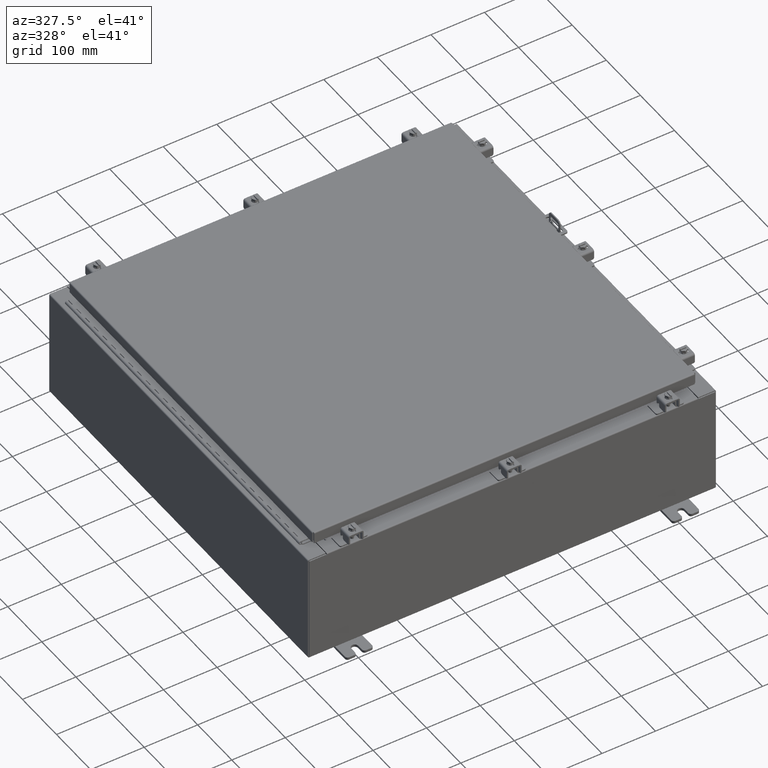
[diagram: clean part render]
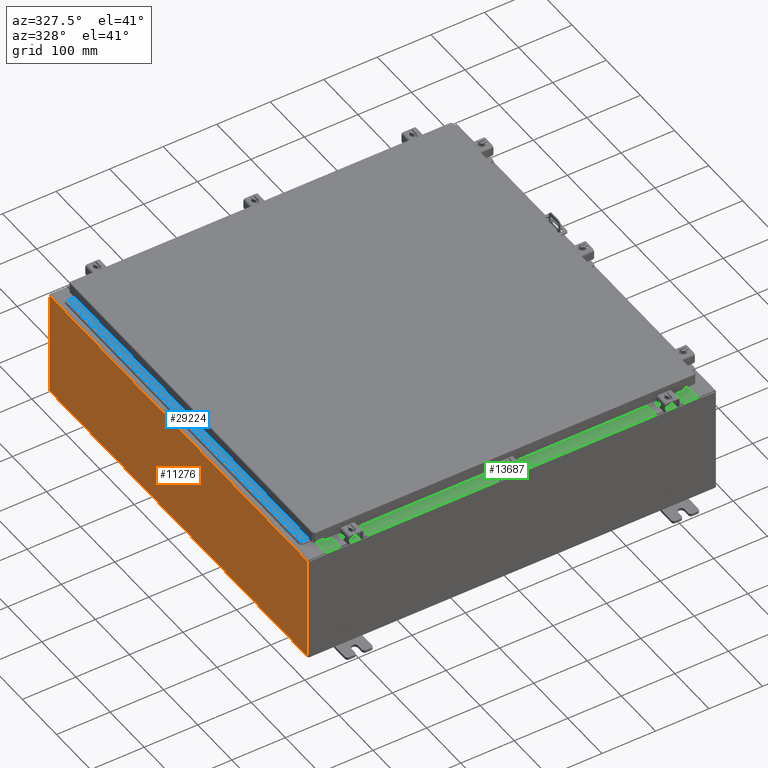
[diagram: same view with three faces highlighted in distinct colors, each labeled with its STEP entity id]
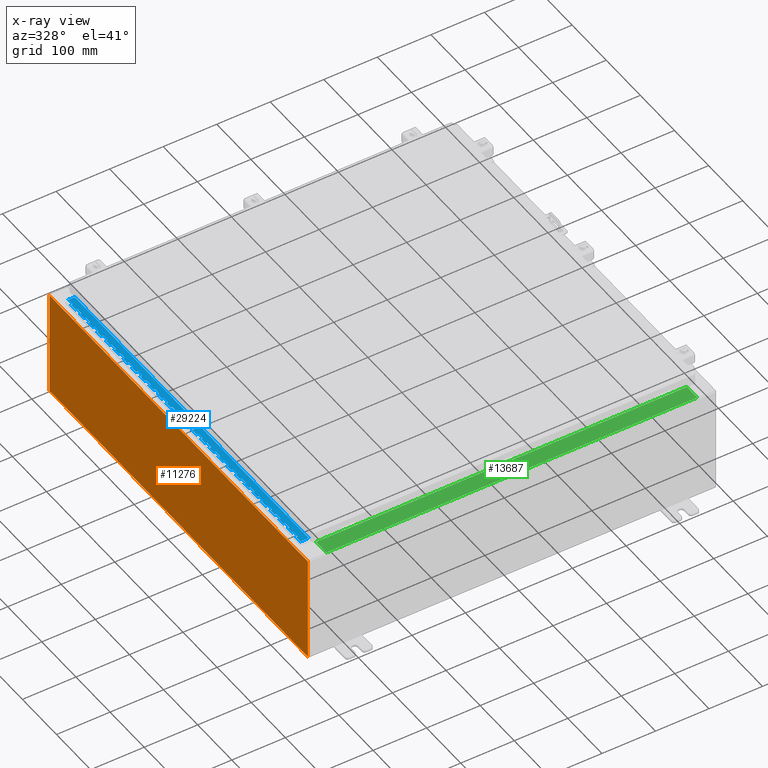
[diagram: x-ray of the same camera — body ghosted, the three highlighted faces saturated]
A machine part, auxiliary view with three faces highlighted in distinct colors.
The next image is the same camera in x-ray (body ghosted, the three faces saturated) — at least one of them is partly hidden behind the body in this view.
Their STEP definitions:

[orange] entity #11276 — the highlighted planar face has unit normal (1, 0, 0).
#617 = FACE_OUTER_BOUND ( 'NONE', #14919, .T. ) ;
#745 = CARTESIAN_POINT ( 'NONE',  ( -15.00000000000000000, 14.92530000000000000, -5.403395625144962700E-014 ) ) ;
#785 = CARTESIAN_POINT ( 'NONE',  ( -15.00000000000002800, -14.92530000000000000, 7.837599999999999200 ) ) ;
#1521 = DIRECTION ( 'NONE',  ( 3.584876173029202900E-015, 0.0000000000000000000, -1.000000000000000000 ) ) ;
#4376 = AXIS2_PLACEMENT_3D ( 'NONE', #11767, #14759, #35596 ) ;
#7113 = EDGE_CURVE ( 'NONE', #31899, #14761, #10953, .T. ) ;
#9791 = VERTEX_POINT ( 'NONE', #10263 ) ;
#10169 = LINE ( 'NONE', #28006, #15288 ) ;
#10263 = CARTESIAN_POINT ( 'NONE',  ( -15.00000000000002800, -14.92530000000000000, 7.837599999999999200 ) ) ;
#10953 = LINE ( 'NONE', #745, #17933 ) ;
#11276 = ADVANCED_FACE ( 'NONE', ( #617 ), #17609, .F. ) ;
#11346 = LINE ( 'NONE', #38522, #18329 ) ;
#11745 = DIRECTION ( 'NONE',  ( -0.0000000000000000000, 1.000000000000000000, -0.0000000000000000000 ) ) ;
#11767 = CARTESIAN_POINT ( 'NONE',  ( -15.00000000000000000, 0.0000000000000000000, -5.403395625144962700E-014 ) ) ;
#12806 = CARTESIAN_POINT ( 'NONE',  ( -15.00000000000000000, -14.92530000000000000, 0.01299999999999984700 ) ) ;
#14227 = CARTESIAN_POINT ( 'NONE',  ( -15.00000000000002800, 14.92530000000000000, 7.837599999999999200 ) ) ;
#14285 = CARTESIAN_POINT ( 'NONE',  ( -15.00000000000000000, 14.92530000000000000, 0.01299999999999983600 ) ) ;
#14759 = DIRECTION ( 'NONE',  ( 1.000000000000000000, 0.0000000000000000000, 3.584876173029202900E-015 ) ) ;
#14761 = VERTEX_POINT ( 'NONE', #14285 ) ;
#14919 = EDGE_LOOP ( 'NONE', ( #23194, #21208, #37049, #36993 ) ) ;
#15288 = VECTOR ( 'NONE', #22152, 39.37007874015748100 ) ;
#17157 = VECTOR ( 'NONE', #18640, 39.37007874015748100 ) ;
#17609 = PLANE ( 'NONE',  #4376 ) ;
#17933 = VECTOR ( 'NONE', #1521, 39.37007874015748100 ) ;
#17978 = EDGE_CURVE ( 'NONE', #9791, #31899, #26022, .T. ) ;
#18329 = VECTOR ( 'NONE', #11745, 39.37007874015748100 ) ;
#18640 = DIRECTION ( 'NONE',  ( 0.0000000000000000000, 1.000000000000000000, 0.0000000000000000000 ) ) ;
#21208 = ORIENTED_EDGE ( 'NONE', *, *, #7113, .T. ) ;
#22152 = DIRECTION ( 'NONE',  ( -3.584876173029202900E-015, 0.0000000000000000000, 1.000000000000000000 ) ) ;
#23194 = ORIENTED_EDGE ( 'NONE', *, *, #17978, .T. ) ;
#23931 = EDGE_CURVE ( 'NONE', #36555, #14761, #11346, .T. ) ;
#26022 = LINE ( 'NONE', #785, #17157 ) ;
#28006 = CARTESIAN_POINT ( 'NONE',  ( -15.00000000000000000, -14.92530000000000000, -5.403395625144962700E-014 ) ) ;
#31899 = VERTEX_POINT ( 'NONE', #14227 ) ;
#32256 = EDGE_CURVE ( 'NONE', #36555, #9791, #10169, .T. ) ;
#35596 = DIRECTION ( 'NONE',  ( 3.584876173029202900E-015, 0.0000000000000000000, -1.000000000000000000 ) ) ;
#36555 = VERTEX_POINT ( 'NONE', #12806 ) ;
#36993 = ORIENTED_EDGE ( 'NONE', *, *, #32256, .T. ) ;
#37049 = ORIENTED_EDGE ( 'NONE', *, *, #23931, .F. ) ;
#38522 = CARTESIAN_POINT ( 'NONE',  ( -15.00000000000000000, 14.92530000000000000, 0.01299999999999984700 ) ) ;

[blue] entity #29224 — the highlighted planar face has unit normal (-0, -0, 1).
#9 = VERTEX_POINT ( 'NONE', #34378 ) ;
#13 = CARTESIAN_POINT ( 'NONE',  ( -0.6869999999999982800, 0.5504999999999997700, -1.499999999999999800 ) ) ;
#56 = EDGE_CURVE ( 'NONE', #8545, #9700, #38021, .T. ) ;
#66 = VERTEX_POINT ( 'NONE', #26908 ) ;
#83 = LINE ( 'NONE', #13, #30893 ) ;
#98 = CARTESIAN_POINT ( 'NONE',  ( -0.6869999999999973900, 0.8004999999999995500, -23.50000000000000000 ) ) ;
#129 = DIRECTION ( 'NONE',  ( -3.389037039080723100E-015, -1.000000000000000000, 0.0000000000000000000 ) ) ;
#159 = EDGE_CURVE ( 'NONE', #37423, #35949, #4490, .T. ) ;
#224 = CARTESIAN_POINT ( 'NONE',  ( -0.6869999999999982800, 0.5504999999999997700, -23.00000000000000000 ) ) ;
#240 = EDGE_CURVE ( 'NONE', #6340, #36575, #11506, .T. ) ;
#241 = LINE ( 'NONE', #9506, #15178 ) ;
#247 = VERTEX_POINT ( 'NONE', #16143 ) ;
#298 = VERTEX_POINT ( 'NONE', #20517 ) ;
#352 = VECTOR ( 'NONE', #32522, 39.37007874015748100 ) ;
#361 = VECTOR ( 'NONE', #15461, 39.37007874015748100 ) ;
#403 = VERTEX_POINT ( 'NONE', #31770 ) ;
#405 = VECTOR ( 'NONE', #25724, 39.37007874015748100 ) ;
#417 = VECTOR ( 'NONE', #31847, 39.37007874015748100 ) ;
#447 = EDGE_CURVE ( 'NONE', #23536, #298, #11013, .T. ) ;
#480 = VERTEX_POINT ( 'NONE', #6103 ) ;
#484 = ORIENTED_EDGE ( 'NONE', *, *, #24631, .F. ) ;
#501 = CARTESIAN_POINT ( 'NONE',  ( -0.6869999999999978300, 0.6754999999999996600, -20.50000000000000400 ) ) ;
#505 = VECTOR ( 'NONE', #22210, 39.37007874015748100 ) ;
#537 = CARTESIAN_POINT ( 'NONE',  ( -0.6869999999999973900, 0.8004999999999995500, -9.500000000000000000 ) ) ;
#577 = CARTESIAN_POINT ( 'NONE',  ( -0.6869999999999973900, 0.8004999999999995500, -13.50000000000000000 ) ) ;
#590 = CARTESIAN_POINT ( 'NONE',  ( -0.6869999999999982800, 0.5504999999999997700, -23.50000000000000000 ) ) ;
#627 = ORIENTED_EDGE ( 'NONE', *, *, #6599, .F. ) ;
#639 = EDGE_CURVE ( 'NONE', #9, #247, #6319, .T. ) ;
#664 = EDGE_LOOP ( 'NONE', ( #18192, #16249, #15384, #35335, #11064, #13026, #24228, #27285, #23441, #3240, #27156, #29852, #11976, #32807, #22740, #7449, #19630, #6002, #11609, #37186, #33477, #37818, #33590, #10537, #6487, #25500, #5636, #23188, #24400, #14466, #31973, #2236, #35899, #24756, #8464, #627, #2359, #30087, #14019, #26922, #12679, #37658, #6021, #31175, #24611, #26556, #484, #35068, #29040, #16794, #22595, #21464, #9678, #16014, #36273, #35398, #29433, #7283, #25170, #10258, #10509, #12719, #15393, #21278, #27038, #8209, #23480, #4066, #36935, #30393, #34038, #15792, #25579, #2309, #27143, #22812, #6231, #18626, #6795, #24007, #36234, #5679, #20945, #9765, #38087, #12525, #26061, #9894, #7370, #32858, #33096, #28247, #16641, #27842, #29011, #32625, #8289, #20260, #28410, #23345, #34125, #29769, #20226, #32586, #13774, #35711, #35258, #20595, #30311, #37630 ) ) ;
#1046 = EDGE_CURVE ( 'NONE', #34140, #66, #241, .T. ) ;
#1053 = VERTEX_POINT ( 'NONE', #10573 ) ;
#1086 = CARTESIAN_POINT ( 'NONE',  ( -0.6869999999999982800, 0.5504999999999997700, -4.500000000000000000 ) ) ;
#1175 = DIRECTION ( 'NONE',  ( 0.0000000000000000000, 0.0000000000000000000, 1.000000000000000000 ) ) ;
#1204 = CARTESIAN_POINT ( 'NONE',  ( -0.6869999999999973900, 0.8004999999999995500, -11.50000000000000000 ) ) ;
#1304 = LINE ( 'NONE', #33322, #352 ) ;
#1312 = LINE ( 'NONE', #577, #361 ) ;
#1315 = DIRECTION ( 'NONE',  ( 0.0000000000000000000, -0.0000000000000000000, -1.000000000000000000 ) ) ;
#1334 = DIRECTION ( 'NONE',  ( 0.0000000000000000000, -0.0000000000000000000, -1.000000000000000000 ) ) ;
#1408 = LINE ( 'NONE', #28923, #8357 ) ;
#1422 = VECTOR ( 'NONE', #30916, 39.37007874015748100 ) ;
#1467 = CARTESIAN_POINT ( 'NONE',  ( -0.6869999999999973900, 0.8004999999999995500, -17.99999999999999600 ) ) ;
#1645 = LINE ( 'NONE', #2169, #17481 ) ;
#1647 = LINE ( 'NONE', #22867, #15639 ) ;
#1689 = LINE ( 'NONE', #21705, #7701 ) ;
#1699 = CARTESIAN_POINT ( 'NONE',  ( -0.6869999999999973900, 0.8004999999999995500, -16.00000000000000000 ) ) ;
#1802 = VERTEX_POINT ( 'NONE', #15031 ) ;
#1925 = CARTESIAN_POINT ( 'NONE',  ( -0.6869999999999982800, 0.5504999999999997700, -6.499999999999999100 ) ) ;
#2010 = EDGE_CURVE ( 'NONE', #34027, #31351, #9033, .T. ) ;
#2152 = VECTOR ( 'NONE', #17887, 39.37007874015748100 ) ;
#2169 = CARTESIAN_POINT ( 'NONE',  ( -0.6869999999999973900, 0.8004999999999995500, -9.000000000000000000 ) ) ;
#2227 = LINE ( 'NONE', #5011, #33030 ) ;
#2236 = ORIENTED_EDGE ( 'NONE', *, *, #16500, .F. ) ;
#2280 = DIRECTION ( 'NONE',  ( -3.389037039080723100E-015, -1.000000000000000000, 0.0000000000000000000 ) ) ;
#2309 = ORIENTED_EDGE ( 'NONE', *, *, #33951, .F. ) ;
#2331 = CARTESIAN_POINT ( 'NONE',  ( -0.6869999999999982800, 0.5504999999999997700, -11.00000000000000000 ) ) ;
#2335 = EDGE_CURVE ( 'NONE', #2660, #28139, #28575, .T. ) ;
#2359 = ORIENTED_EDGE ( 'NONE', *, *, #8249, .T. ) ;
#2365 = VECTOR ( 'NONE', #24768, 39.37007874015748100 ) ;
#2414 = CARTESIAN_POINT ( 'NONE',  ( -0.6869999999999978300, 0.6754999999999996600, -7.499999999999999100 ) ) ;
#2567 = VECTOR ( 'NONE', #26356, 39.37007874015748100 ) ;
#2614 = EDGE_CURVE ( 'NONE', #1802, #13659, #6166, .T. ) ;
#2621 = VECTOR ( 'NONE', #15195, 39.37007874015748100 ) ;
#2627 = VERTEX_POINT ( 'NONE', #37246 ) ;
#2633 = VECTOR ( 'NONE', #16400, 39.37007874015748100 ) ;
#2660 = VERTEX_POINT ( 'NONE', #18876 ) ;
#2669 = VERTEX_POINT ( 'NONE', #27568 ) ;
#2826 = CARTESIAN_POINT ( 'NONE',  ( -0.6869999999999978300, 0.6754999999999996600, -12.49999999999999800 ) ) ;
#2864 = CARTESIAN_POINT ( 'NONE',  ( -0.6869999999999982800, 0.5504999999999997700, -16.00000000000000000 ) ) ;
#2900 = CARTESIAN_POINT ( 'NONE',  ( -0.6869999999999982800, 0.5504999999999997700, -23.50000000000000000 ) ) ;
#2909 = EDGE_CURVE ( 'NONE', #21947, #36894, #32759, .T. ) ;
#2927 = DIRECTION ( 'NONE',  ( 3.389037039080723100E-015, 1.000000000000000000, -0.0000000000000000000 ) ) ;
#3022 = DIRECTION ( 'NONE',  ( 0.0000000000000000000, -0.0000000000000000000, -1.000000000000000000 ) ) ;
#3025 = EDGE_CURVE ( 'NONE', #14532, #36762, #19118, .T. ) ;
#3050 = CARTESIAN_POINT ( 'NONE',  ( -0.6869999999999982800, 0.5504999999999997700, -22.00000000000000000 ) ) ;
#3083 = EDGE_CURVE ( 'NONE', #28524, #28747, #1408, .T. ) ;
#3096 = CARTESIAN_POINT ( 'NONE',  ( -0.6869999999999973900, 0.8004999999999995500, -1.499999999999999800 ) ) ;
#3100 = DIRECTION ( 'NONE',  ( -3.389037039080723100E-015, -1.000000000000000000, 0.0000000000000000000 ) ) ;
#3105 = VERTEX_POINT ( 'NONE', #590 ) ;
#3109 = DIRECTION ( 'NONE',  ( 0.0000000000000000000, 0.0000000000000000000, 1.000000000000000000 ) ) ;
#3127 = VERTEX_POINT ( 'NONE', #32584 ) ;
#3153 = CARTESIAN_POINT ( 'NONE',  ( -0.6869999999999978300, 0.6754999999999996600, -23.00000000000000000 ) ) ;
#3190 = EDGE_CURVE ( 'NONE', #11821, #11290, #5551, .T. ) ;
#3240 = ORIENTED_EDGE ( 'NONE', *, *, #28776, .F. ) ;
#3252 = VECTOR ( 'NONE', #14683, 39.37007874015748100 ) ;
#3288 = LINE ( 'NONE', #12765, #2365 ) ;
#3358 = VERTEX_POINT ( 'NONE', #13523 ) ;
#3364 = LINE ( 'NONE', #19816, #9457 ) ;
#3496 = LINE ( 'NONE', #2900, #11440 ) ;
#3609 = DIRECTION ( 'NONE',  ( -3.389037039080723100E-015, -1.000000000000000000, 0.0000000000000000000 ) ) ;
#3720 = LINE ( 'NONE', #28916, #10731 ) ;
#3744 = LINE ( 'NONE', #21287, #18679 ) ;
#3823 = LINE ( 'NONE', #36289, #24847 ) ;
#3899 = VERTEX_POINT ( 'NONE', #18383 ) ;
#4007 = EDGE_CURVE ( 'NONE', #12600, #28747, #26041, .T. ) ;
#4010 = LINE ( 'NONE', #36974, #18939 ) ;
#4066 = ORIENTED_EDGE ( 'NONE', *, *, #2614, .F. ) ;
#4101 = VERTEX_POINT ( 'NONE', #25235 ) ;
#4113 = VERTEX_POINT ( 'NONE', #26361 ) ;
#4155 = DIRECTION ( 'NONE',  ( -3.389037039080723100E-015, -1.000000000000000000, 0.0000000000000000000 ) ) ;
#4177 = CARTESIAN_POINT ( 'NONE',  ( -0.6869999999999978300, 0.6754999999999996600, -27.00000000000000000 ) ) ;
#4201 = CARTESIAN_POINT ( 'NONE',  ( -0.6869999999999973900, 0.8004999999999995500, -20.50000000000000400 ) ) ;
#4341 = LINE ( 'NONE', #25625, #27201 ) ;
#4344 = VECTOR ( 'NONE', #20455, 39.37007874015748100 ) ;
#4406 = CARTESIAN_POINT ( 'NONE',  ( -0.6869999999999978300, 0.6754999999999996600, -18.50000000000000000 ) ) ;
#4436 = VECTOR ( 'NONE', #32437, 39.37007874015748100 ) ;
#4490 = LINE ( 'NONE', #10535, #5402 ) ;
#4510 = DIRECTION ( 'NONE',  ( 0.0000000000000000000, -0.0000000000000000000, -1.000000000000000000 ) ) ;
#4517 = VECTOR ( 'NONE', #16002, 39.37007874015748100 ) ;
#4827 = VECTOR ( 'NONE', #20960, 39.37007874015748100 ) ;
#4899 = LINE ( 'NONE', #6295, #10993 ) ;
#4908 = VECTOR ( 'NONE', #23965, 39.37007874015748100 ) ;
#4947 = VERTEX_POINT ( 'NONE', #12116 ) ;
#5011 = CARTESIAN_POINT ( 'NONE',  ( -0.6869999999999973900, 0.8004999999999995500, -0.5000000000000000000 ) ) ;
#5069 = DIRECTION ( 'NONE',  ( -3.389037039080723100E-015, -1.000000000000000000, 0.0000000000000000000 ) ) ;
#5080 = DIRECTION ( 'NONE',  ( 3.389037039080723100E-015, 1.000000000000000000, -0.0000000000000000000 ) ) ;
#5191 = VERTEX_POINT ( 'NONE', #14839 ) ;
#5203 = CARTESIAN_POINT ( 'NONE',  ( -0.6869999999999982800, 0.5504999999999997700, -2.500000000000000000 ) ) ;
#5259 = EDGE_CURVE ( 'NONE', #29163, #35724, #2227, .T. ) ;
#5325 = EDGE_CURVE ( 'NONE', #2669, #13292, #1304, .T. ) ;
#5364 = VERTEX_POINT ( 'NONE', #12574 ) ;
#5384 = VECTOR ( 'NONE', #34797, 39.37007874015748100 ) ;
#5402 = VECTOR ( 'NONE', #10898, 39.37007874015748100 ) ;
#5415 = CARTESIAN_POINT ( 'NONE',  ( -0.6869999999999978300, 0.6754999999999996600, -14.49999999999999800 ) ) ;
#5418 = VECTOR ( 'NONE', #1175, 39.37007874015748100 ) ;
#5551 = LINE ( 'NONE', #6656, #36352 ) ;
#5636 = ORIENTED_EDGE ( 'NONE', *, *, #17558, .F. ) ;
#5662 = DIRECTION ( 'NONE',  ( 0.0000000000000000000, -0.0000000000000000000, -1.000000000000000000 ) ) ;
#5679 = ORIENTED_EDGE ( 'NONE', *, *, #26211, .F. ) ;
#5756 = CARTESIAN_POINT ( 'NONE',  ( -0.6869999999999978300, 0.6754999999999996600, -24.50000000000000000 ) ) ;
#5770 = VERTEX_POINT ( 'NONE', #26256 ) ;
#5775 = CARTESIAN_POINT ( 'NONE',  ( -0.6869999999999973900, 0.8004999999999995500, -23.00000000000000000 ) ) ;
#5817 = VERTEX_POINT ( 'NONE', #28005 ) ;
#5835 = LINE ( 'NONE', #20830, #4908 ) ;
#5919 = CARTESIAN_POINT ( 'NONE',  ( -0.6869999999999982800, 0.5504999999999997700, -1.499999999999999800 ) ) ;
#5934 = LINE ( 'NONE', #27804, #28805 ) ;
#5938 = CARTESIAN_POINT ( 'NONE',  ( -0.6869999999999978300, 0.6754999999999996600, -13.50000000000000000 ) ) ;
#6002 = ORIENTED_EDGE ( 'NONE', *, *, #14854, .F. ) ;
#6021 = ORIENTED_EDGE ( 'NONE', *, *, #32615, .F. ) ;
#6100 = CARTESIAN_POINT ( 'NONE',  ( -0.6869999999999982800, 0.5504999999999997700, -11.99999999999999800 ) ) ;
#6103 = CARTESIAN_POINT ( 'NONE',  ( -0.6869999999999978300, 0.6754999999999996600, -19.50000000000000000 ) ) ;
#6166 = LINE ( 'NONE', #38394, #19227 ) ;
#6231 = ORIENTED_EDGE ( 'NONE', *, *, #18611, .T. ) ;
#6276 = VERTEX_POINT ( 'NONE', #23906 ) ;
#6295 = CARTESIAN_POINT ( 'NONE',  ( -0.6869999999999973900, 0.8004999999999995500, -18.50000000000000000 ) ) ;
#6319 = LINE ( 'NONE', #13902, #36178 ) ;
#6340 = VERTEX_POINT ( 'NONE', #17047 ) ;
#6361 = DIRECTION ( 'NONE',  ( -3.389037039080723100E-015, -1.000000000000000000, 0.0000000000000000000 ) ) ;
#6402 = LINE ( 'NONE', #13968, #37160 ) ;
#6418 = CARTESIAN_POINT ( 'NONE',  ( -0.6869999999999978300, 0.6754999999999996600, -27.00000000000000000 ) ) ;
#6487 = ORIENTED_EDGE ( 'NONE', *, *, #639, .T. ) ;
#6489 = CARTESIAN_POINT ( 'NONE',  ( -0.6869999999999982800, 0.5504999999999997700, -21.50000000000000400 ) ) ;
#6599 = EDGE_CURVE ( 'NONE', #30535, #10045, #4899, .T. ) ;
#6628 = DIRECTION ( 'NONE',  ( 0.0000000000000000000, 0.0000000000000000000, 1.000000000000000000 ) ) ;
#6656 = CARTESIAN_POINT ( 'NONE',  ( -0.6869999999999973900, 0.8004999999999995500, -8.500000000000000000 ) ) ;
#6727 = DIRECTION ( 'NONE',  ( 3.369016658928398200E-015, 1.000000000000000000, 0.0000000000000000000 ) ) ;
#6791 = EDGE_CURVE ( 'NONE', #22746, #10739, #28232, .T. ) ;
#6795 = ORIENTED_EDGE ( 'NONE', *, *, #26152, .F. ) ;
#6816 = EDGE_CURVE ( 'NONE', #32137, #8157, #36156, .T. ) ;
#6905 = DIRECTION ( 'NONE',  ( 3.389037039080723100E-015, 1.000000000000000000, -0.0000000000000000000 ) ) ;
#6939 = EDGE_CURVE ( 'NONE', #2669, #25414, #1647, .T. ) ;
#7157 = CARTESIAN_POINT ( 'NONE',  ( -0.6869999999999978300, 0.6754999999999996600, -4.500000000000000000 ) ) ;
#7215 = VECTOR ( 'NONE', #8649, 39.37007874015748100 ) ;
#7245 = CARTESIAN_POINT ( 'NONE',  ( -0.6869999999999978300, 0.6754999999999996600, -11.99999999999999800 ) ) ;
#7255 = CARTESIAN_POINT ( 'NONE',  ( -0.6869999999999982800, 0.5504999999999997700, -27.00000000000000000 ) ) ;
#7271 = CARTESIAN_POINT ( 'NONE',  ( -0.6869999999999978300, 0.6754999999999996600, -14.99999999999999800 ) ) ;
#7283 = ORIENTED_EDGE ( 'NONE', *, *, #17579, .F. ) ;
#7357 = CARTESIAN_POINT ( 'NONE',  ( -0.6869999999999982800, 0.5504999999999997700, -8.000000000000000000 ) ) ;
#7370 = ORIENTED_EDGE ( 'NONE', *, *, #14912, .T. ) ;
#7449 = ORIENTED_EDGE ( 'NONE', *, *, #14281, .F. ) ;
#7590 = VECTOR ( 'NONE', #10773, 39.37007874015748100 ) ;
#7636 = DIRECTION ( 'NONE',  ( 0.0000000000000000000, 0.0000000000000000000, 1.000000000000000000 ) ) ;
#7701 = VECTOR ( 'NONE', #18832, 39.37007874015748100 ) ;
#7753 = DIRECTION ( 'NONE',  ( 0.0000000000000000000, -0.0000000000000000000, -1.000000000000000000 ) ) ;
#7757 = DIRECTION ( 'NONE',  ( 0.0000000000000000000, 0.0000000000000000000, 1.000000000000000000 ) ) ;
#7810 = CARTESIAN_POINT ( 'NONE',  ( -0.6869999999999982800, 0.5504999999999997700, -20.50000000000000400 ) ) ;
#7925 = LINE ( 'NONE', #15854, #14950 ) ;
#7972 = DIRECTION ( 'NONE',  ( -3.389037039080723100E-015, -1.000000000000000000, 0.0000000000000000000 ) ) ;
#7987 = CARTESIAN_POINT ( 'NONE',  ( -0.6869999999999982800, 0.5504999999999997700, -10.00000000000000000 ) ) ;
#8018 = CARTESIAN_POINT ( 'NONE',  ( -0.6869999999999982800, 0.5504999999999997700, -12.99999999999999800 ) ) ;
#8068 = VECTOR ( 'NONE', #28188, 39.37007874015748100 ) ;
#8157 = VERTEX_POINT ( 'NONE', #224 ) ;
#8209 = ORIENTED_EDGE ( 'NONE', *, *, #15370, .F. ) ;
#8240 = DIRECTION ( 'NONE',  ( 0.0000000000000000000, -0.0000000000000000000, -1.000000000000000000 ) ) ;
#8249 = EDGE_CURVE ( 'NONE', #30535, #28139, #15067, .T. ) ;
#8289 = ORIENTED_EDGE ( 'NONE', *, *, #159, .T. ) ;
#8306 = LINE ( 'NONE', #37188, #23250 ) ;
#8357 = VECTOR ( 'NONE', #32943, 39.37007874015748100 ) ;
#8372 = CARTESIAN_POINT ( 'NONE',  ( -0.6869999999999982800, 0.5504999999999997700, -1.000000000000000000 ) ) ;
#8403 = VECTOR ( 'NONE', #20506, 39.37007874015748100 ) ;
#8411 = LINE ( 'NONE', #4201, #505 ) ;
#8464 = ORIENTED_EDGE ( 'NONE', *, *, #8619, .F. ) ;
#8490 = LINE ( 'NONE', #19840, #14579 ) ;
#8503 = CARTESIAN_POINT ( 'NONE',  ( -0.6869999999999973900, 0.8004999999999995500, -7.000000000000000000 ) ) ;
#8545 = VERTEX_POINT ( 'NONE', #27047 ) ;
#8619 = EDGE_CURVE ( 'NONE', #10045, #32186, #3823, .T. ) ;
#8649 = DIRECTION ( 'NONE',  ( -3.389037039080723100E-015, -1.000000000000000000, 0.0000000000000000000 ) ) ;
#8819 = VERTEX_POINT ( 'NONE', #37407 ) ;
#8944 = VECTOR ( 'NONE', #17035, 39.37007874015748100 ) ;
#9000 = VECTOR ( 'NONE', #29379, 39.37007874015748100 ) ;
#9033 = LINE ( 'NONE', #32227, #8068 ) ;
#9102 = LINE ( 'NONE', #32193, #31950 ) ;
#9106 = VERTEX_POINT ( 'NONE', #26877 ) ;
#9229 = DIRECTION ( 'NONE',  ( 3.389037039080723100E-015, 1.000000000000000000, -0.0000000000000000000 ) ) ;
#9341 = PLANE ( 'NONE',  #16897 ) ;
#9403 = CARTESIAN_POINT ( 'NONE',  ( -0.6869999999999973900, 0.8004999999999995500, -2.500000000000000000 ) ) ;
#9434 = VECTOR ( 'NONE', #24670, 39.37007874015748100 ) ;
#9457 = VECTOR ( 'NONE', #34682, 39.37007874015748100 ) ;
#9473 = CARTESIAN_POINT ( 'NONE',  ( -0.6869999999999973900, 0.8004999999999995500, -5.500000000000000000 ) ) ;
#9506 = CARTESIAN_POINT ( 'NONE',  ( -0.6869999999999973900, 0.8004999999999995500, -22.00000000000000000 ) ) ;
#9601 = CARTESIAN_POINT ( 'NONE',  ( -0.6869999999999973900, 0.8004999999999995500, -2.000000000000000000 ) ) ;
#9612 = VECTOR ( 'NONE', #25082, 39.37007874015748100 ) ;
#9678 = ORIENTED_EDGE ( 'NONE', *, *, #25446, .T. ) ;
#9700 = VERTEX_POINT ( 'NONE', #18710 ) ;
#9734 = EDGE_CURVE ( 'NONE', #11739, #25084, #7925, .T. ) ;
#9765 = ORIENTED_EDGE ( 'NONE', *, *, #240, .F. ) ;
#9894 = ORIENTED_EDGE ( 'NONE', *, *, #3025, .F. ) ;
#9920 = LINE ( 'NONE', #36825, #24844 ) ;
#9976 = DIRECTION ( 'NONE',  ( 0.0000000000000000000, -0.0000000000000000000, -1.000000000000000000 ) ) ;
#10045 = VERTEX_POINT ( 'NONE', #23379 ) ;
#10123 = EDGE_CURVE ( 'NONE', #3105, #14477, #3496, .T. ) ;
#10258 = ORIENTED_EDGE ( 'NONE', *, *, #10919, .F. ) ;
#10292 = VERTEX_POINT ( 'NONE', #6489 ) ;
#10509 = ORIENTED_EDGE ( 'NONE', *, *, #4007, .T. ) ;
#10535 = CARTESIAN_POINT ( 'NONE',  ( -0.6869999999999978300, 0.6754999999999996600, -27.00000000000000000 ) ) ;
#10537 = ORIENTED_EDGE ( 'NONE', *, *, #13149, .F. ) ;
#10564 = DIRECTION ( 'NONE',  ( 0.0000000000000000000, 0.0000000000000000000, 1.000000000000000000 ) ) ;
#10573 = CARTESIAN_POINT ( 'NONE',  ( -0.6869999999999982800, 0.5504999999999997700, -9.500000000000000000 ) ) ;
#10642 = CARTESIAN_POINT ( 'NONE',  ( -0.6869999999999973900, 0.8004999999999995500, -21.00000000000000000 ) ) ;
#10643 = VERTEX_POINT ( 'NONE', #29155 ) ;
#10731 = VECTOR ( 'NONE', #26060, 39.37007874015748100 ) ;
#10739 = VERTEX_POINT ( 'NONE', #17673 ) ;
#10773 = DIRECTION ( 'NONE',  ( 0.0000000000000000000, 0.0000000000000000000, 1.000000000000000000 ) ) ;
#10831 = LINE ( 'NONE', #22411, #32761 ) ;
#10898 = DIRECTION ( 'NONE',  ( 0.0000000000000000000, 0.0000000000000000000, 1.000000000000000000 ) ) ;
#10919 = EDGE_CURVE ( 'NONE', #12600, #30308, #24917, .T. ) ;
#10957 = LINE ( 'NONE', #28292, #25878 ) ;
#10962 = DIRECTION ( 'NONE',  ( 0.0000000000000000000, -0.0000000000000000000, -1.000000000000000000 ) ) ;
#10993 = VECTOR ( 'NONE', #5069, 39.37007874015748100 ) ;
#11013 = LINE ( 'NONE', #24120, #17998 ) ;
#11038 = CARTESIAN_POINT ( 'NONE',  ( -0.6869999999999978300, 0.6754999999999996600, -3.500000000000000000 ) ) ;
#11064 = ORIENTED_EDGE ( 'NONE', *, *, #447, .T. ) ;
#11122 = VECTOR ( 'NONE', #34265, 39.37007874015748100 ) ;
#11290 = VERTEX_POINT ( 'NONE', #20755 ) ;
#11344 = DIRECTION ( 'NONE',  ( 3.389037039080723100E-015, 1.000000000000000000, -0.0000000000000000000 ) ) ;
#11440 = VECTOR ( 'NONE', #14774, 39.37007874015748100 ) ;
#11506 = LINE ( 'NONE', #13638, #2621 ) ;
#11569 = VECTOR ( 'NONE', #19534, 39.37007874015748100 ) ;
#11609 = ORIENTED_EDGE ( 'NONE', *, *, #6816, .F. ) ;
#11712 = DIRECTION ( 'NONE',  ( 0.0000000000000000000, -0.0000000000000000000, -1.000000000000000000 ) ) ;
#11739 = VERTEX_POINT ( 'NONE', #18234 ) ;
#11821 = VERTEX_POINT ( 'NONE', #36471 ) ;
#11883 = CARTESIAN_POINT ( 'NONE',  ( -0.6869999999999978300, 0.6754999999999996600, -24.99999999999999600 ) ) ;
#11899 = EDGE_CURVE ( 'NONE', #5770, #2660, #9920, .T. ) ;
#11976 = ORIENTED_EDGE ( 'NONE', *, *, #14088, .T. ) ;
#12049 = EDGE_CURVE ( 'NONE', #25846, #28530, #28991, .T. ) ;
#12064 = CARTESIAN_POINT ( 'NONE',  ( -0.6869999999999973900, 0.8004999999999995500, -21.50000000000000400 ) ) ;
#12116 = CARTESIAN_POINT ( 'NONE',  ( -0.6869999999999978300, 0.6754999999999996600, -22.50000000000000000 ) ) ;
#12237 = VERTEX_POINT ( 'NONE', #14700 ) ;
#12281 = VERTEX_POINT ( 'NONE', #5919 ) ;
#12308 = LINE ( 'NONE', #24839, #36070 ) ;
#12460 = DIRECTION ( 'NONE',  ( 0.0000000000000000000, 0.0000000000000000000, 1.000000000000000000 ) ) ;
#12478 = VERTEX_POINT ( 'NONE', #2331 ) ;
#12525 = ORIENTED_EDGE ( 'NONE', *, *, #22505, .F. ) ;
#12574 = CARTESIAN_POINT ( 'NONE',  ( -0.6869999999999982800, 0.5504999999999997700, -3.500000000000000000 ) ) ;
#12600 = VERTEX_POINT ( 'NONE', #2826 ) ;
#12618 = CARTESIAN_POINT ( 'NONE',  ( -0.6870000000000022800, -0.6245000000000003900, 0.0000000000000000000 ) ) ;
#12679 = ORIENTED_EDGE ( 'NONE', *, *, #31297, .T. ) ;
#12719 = ORIENTED_EDGE ( 'NONE', *, *, #3083, .F. ) ;
#12765 = CARTESIAN_POINT ( 'NONE',  ( -0.6869999999999973900, 0.8004999999999995500, -6.000000000000000900 ) ) ;
#12837 = LINE ( 'NONE', #12944, #35661 ) ;
#12935 = LINE ( 'NONE', #20973, #13852 ) ;
#12944 = CARTESIAN_POINT ( 'NONE',  ( -0.6869999999999978300, 0.6754999999999996600, -27.00000000000000000 ) ) ;
#12971 = EDGE_CURVE ( 'NONE', #17208, #8819, #30408, .T. ) ;
#12996 = CARTESIAN_POINT ( 'NONE',  ( -0.6869999999999978300, 0.6754999999999996600, -27.00000000000000000 ) ) ;
#13026 = ORIENTED_EDGE ( 'NONE', *, *, #19902, .F. ) ;
#13035 = VERTEX_POINT ( 'NONE', #29378 ) ;
#13087 = LINE ( 'NONE', #15011, #28000 ) ;
#13149 = EDGE_CURVE ( 'NONE', #9, #10292, #16857, .T. ) ;
#13201 = VECTOR ( 'NONE', #19633, 39.37007874015748100 ) ;
#13290 = VERTEX_POINT ( 'NONE', #36519 ) ;
#13292 = VERTEX_POINT ( 'NONE', #15706 ) ;
#13349 = DIRECTION ( 'NONE',  ( 3.389037039080723100E-015, 1.000000000000000000, -0.0000000000000000000 ) ) ;
#13363 = LINE ( 'NONE', #13932, #5384 ) ;
#13388 = EDGE_CURVE ( 'NONE', #30309, #21777, #8411, .T. ) ;
#13405 = LINE ( 'NONE', #12996, #4517 ) ;
#13458 = VECTOR ( 'NONE', #35059, 39.37007874015748100 ) ;
#13472 = VECTOR ( 'NONE', #23921, 39.37007874015748100 ) ;
#13523 = CARTESIAN_POINT ( 'NONE',  ( -0.6869999999999978300, 0.6754999999999996600, -17.50000000000000000 ) ) ;
#13638 = CARTESIAN_POINT ( 'NONE',  ( -0.6869999999999973900, 0.8004999999999995500, -6.499999999999999100 ) ) ;
#13659 = VERTEX_POINT ( 'NONE', #26463 ) ;
#13675 = VECTOR ( 'NONE', #6905, 39.37007874015748100 ) ;
#13721 = LINE ( 'NONE', #3096, #4827 ) ;
#13757 = LINE ( 'NONE', #18506, #20748 ) ;
#13773 = EDGE_CURVE ( 'NONE', #21947, #28044, #13087, .T. ) ;
#13774 = ORIENTED_EDGE ( 'NONE', *, *, #12049, .T. ) ;
#13810 = DIRECTION ( 'NONE',  ( 3.389037039080723100E-015, 1.000000000000000000, -0.0000000000000000000 ) ) ;
#13852 = VECTOR ( 'NONE', #3109, 39.37007874015748100 ) ;
#13864 = EDGE_CURVE ( 'NONE', #8545, #34363, #26131, .T. ) ;
#13902 = CARTESIAN_POINT ( 'NONE',  ( -0.6869999999999978300, 0.6754999999999996600, -27.00000000000000000 ) ) ;
#13932 = CARTESIAN_POINT ( 'NONE',  ( -0.6869999999999973900, 0.8004999999999995500, -4.000000000000000000 ) ) ;
#13957 = VECTOR ( 'NONE', #4155, 39.37007874015748100 ) ;
#13968 = CARTESIAN_POINT ( 'NONE',  ( -0.6869999999999973900, 0.8004999999999995500, -11.00000000000000000 ) ) ;
#13985 = CARTESIAN_POINT ( 'NONE',  ( -0.6869999999999978300, 0.6754999999999996600, -27.00000000000000000 ) ) ;
#14019 = ORIENTED_EDGE ( 'NONE', *, *, #11899, .F. ) ;
#14088 = EDGE_CURVE ( 'NONE', #23330, #10643, #3720, .T. ) ;
#14268 = VECTOR ( 'NONE', #13810, 39.37007874015748100 ) ;
#14281 = EDGE_CURVE ( 'NONE', #32809, #3105, #28885, .T. ) ;
#14311 = LINE ( 'NONE', #36819, #5418 ) ;
#14466 = ORIENTED_EDGE ( 'NONE', *, *, #6791, .F. ) ;
#14477 = VERTEX_POINT ( 'NONE', #27739 ) ;
#14515 = LINE ( 'NONE', #17078, #29432 ) ;
#14532 = VERTEX_POINT ( 'NONE', #25033 ) ;
#14575 = CARTESIAN_POINT ( 'NONE',  ( -0.6869999999999982800, 0.5504999999999997700, -3.500000000000000000 ) ) ;
#14579 = VECTOR ( 'NONE', #7972, 39.37007874015748100 ) ;
#14683 = DIRECTION ( 'NONE',  ( -3.389037039080723100E-015, -1.000000000000000000, 0.0000000000000000000 ) ) ;
#14700 = CARTESIAN_POINT ( 'NONE',  ( -0.6869999999999982800, 0.5504999999999997700, -26.00000000000000000 ) ) ;
#14731 = VECTOR ( 'NONE', #23699, 39.37007874015748100 ) ;
#14762 = LINE ( 'NONE', #1925, #37567 ) ;
#14774 = DIRECTION ( 'NONE',  ( 0.0000000000000000000, -0.0000000000000000000, -1.000000000000000000 ) ) ;
#14839 = CARTESIAN_POINT ( 'NONE',  ( -0.6869999999999978300, 0.6754999999999996600, -12.99999999999999800 ) ) ;
#14854 = EDGE_CURVE ( 'NONE', #8157, #26357, #23246, .T. ) ;
#14881 = VECTOR ( 'NONE', #18343, 39.37007874015748100 ) ;
#14912 = EDGE_CURVE ( 'NONE', #14532, #20566, #29298, .T. ) ;
#14950 = VECTOR ( 'NONE', #33740, 39.37007874015748100 ) ;
#15011 = CARTESIAN_POINT ( 'NONE',  ( -0.6869999999999973900, 0.8004999999999995500, -4.500000000000000000 ) ) ;
#15031 = CARTESIAN_POINT ( 'NONE',  ( -0.6869999999999978300, 0.6754999999999996600, -10.50000000000000000 ) ) ;
#15059 = DIRECTION ( 'NONE',  ( -3.389037039080723100E-015, -1.000000000000000000, 0.0000000000000000000 ) ) ;
#15067 = LINE ( 'NONE', #16647, #13201 ) ;
#15072 = VERTEX_POINT ( 'NONE', #33594 ) ;
#15120 = CARTESIAN_POINT ( 'NONE',  ( -0.6869999999999978300, 0.6754999999999996600, -1.000000000000000000 ) ) ;
#15178 = VECTOR ( 'NONE', #9229, 39.37007874015748100 ) ;
#15193 = LINE ( 'NONE', #29506, #7215 ) ;
#15195 = DIRECTION ( 'NONE',  ( -3.389037039080723100E-015, -1.000000000000000000, 0.0000000000000000000 ) ) ;
#15234 = DIRECTION ( 'NONE',  ( 0.0000000000000000000, -0.0000000000000000000, -1.000000000000000000 ) ) ;
#15343 = VECTOR ( 'NONE', #2927, 39.37007874015748100 ) ;
#15344 = DIRECTION ( 'NONE',  ( 3.369016658928398200E-015, 1.000000000000000000, 0.0000000000000000000 ) ) ;
#15353 = LINE ( 'NONE', #7810, #405 ) ;
#15363 = LINE ( 'NONE', #13985, #417 ) ;
#15370 = EDGE_CURVE ( 'NONE', #12478, #9700, #6402, .T. ) ;
#15384 = ORIENTED_EDGE ( 'NONE', *, *, #34098, .F. ) ;
#15393 = ORIENTED_EDGE ( 'NONE', *, *, #33146, .F. ) ;
#15461 = DIRECTION ( 'NONE',  ( -3.389037039080723100E-015, -1.000000000000000000, 0.0000000000000000000 ) ) ;
#15477 = VECTOR ( 'NONE', #31947, 39.37007874015748100 ) ;
#15639 = VECTOR ( 'NONE', #22445, 39.37007874015748100 ) ;
#15680 = VECTOR ( 'NONE', #31510, 39.37007874015748100 ) ;
#15706 = CARTESIAN_POINT ( 'NONE',  ( -0.6869999999999998300, 0.07549999999999991400, 0.0000000000000000000 ) ) ;
#15792 = ORIENTED_EDGE ( 'NONE', *, *, #15955, .F. ) ;
#15854 = CARTESIAN_POINT ( 'NONE',  ( -0.6869999999999978300, 0.6754999999999996600, -27.00000000000000000 ) ) ;
#15930 = VECTOR ( 'NONE', #15059, 39.37007874015748100 ) ;
#15955 = EDGE_CURVE ( 'NONE', #18760, #1053, #32504, .T. ) ;
#16002 = DIRECTION ( 'NONE',  ( 0.0000000000000000000, 0.0000000000000000000, 1.000000000000000000 ) ) ;
#16008 = VECTOR ( 'NONE', #17211, 39.37007874015748100 ) ;
#16014 = ORIENTED_EDGE ( 'NONE', *, *, #36529, .F. ) ;
#16036 = DIRECTION ( 'NONE',  ( 0.0000000000000000000, -0.0000000000000000000, -1.000000000000000000 ) ) ;
#16143 = CARTESIAN_POINT ( 'NONE',  ( -0.6869999999999978300, 0.6754999999999996600, -21.00000000000000000 ) ) ;
#16249 = ORIENTED_EDGE ( 'NONE', *, *, #6939, .T. ) ;
#16289 = EDGE_CURVE ( 'NONE', #5817, #36894, #13363, .T. ) ;
#16357 = DIRECTION ( 'NONE',  ( -3.389037039080723100E-015, -1.000000000000000000, 0.0000000000000000000 ) ) ;
#16368 = LINE ( 'NONE', #8503, #8403 ) ;
#16400 = DIRECTION ( 'NONE',  ( 3.389037039080723100E-015, 1.000000000000000000, -0.0000000000000000000 ) ) ;
#16500 = EDGE_CURVE ( 'NONE', #480, #23739, #34354, .T. ) ;
#16526 = VERTEX_POINT ( 'NONE', #5938 ) ;
#16556 = EDGE_CURVE ( 'NONE', #23239, #28530, #5835, .T. ) ;
#16584 = LINE ( 'NONE', #36990, #31515 ) ;
#16609 = LINE ( 'NONE', #16994, #23611 ) ;
#16623 = EDGE_CURVE ( 'NONE', #27944, #32176, #22806, .T. ) ;
#16641 = ORIENTED_EDGE ( 'NONE', *, *, #2909, .T. ) ;
#16644 = CARTESIAN_POINT ( 'NONE',  ( -0.6869999999999978300, 0.6754999999999996600, -27.00000000000000000 ) ) ;
#16647 = CARTESIAN_POINT ( 'NONE',  ( -0.6869999999999978300, 0.6754999999999996600, -27.00000000000000000 ) ) ;
#16794 = ORIENTED_EDGE ( 'NONE', *, *, #33324, .F. ) ;
#16832 = EDGE_CURVE ( 'NONE', #403, #19552, #8306, .T. ) ;
#16857 = LINE ( 'NONE', #12064, #15930 ) ;
#16858 = LINE ( 'NONE', #37741, #24816 ) ;
#16886 = CARTESIAN_POINT ( 'NONE',  ( -0.6869999999999982800, 0.5504999999999997700, -0.5000000000000000000 ) ) ;
#16897 = AXIS2_PLACEMENT_3D ( 'NONE', #30197, #33211, #15344 ) ;
#16994 = CARTESIAN_POINT ( 'NONE',  ( -0.6869999999999973900, 0.8004999999999995500, -23.99999999999999600 ) ) ;
#17035 = DIRECTION ( 'NONE',  ( 0.0000000000000000000, 0.0000000000000000000, 1.000000000000000000 ) ) ;
#17047 = CARTESIAN_POINT ( 'NONE',  ( -0.6869999999999978300, 0.6754999999999996600, -6.499999999999999100 ) ) ;
#17078 = CARTESIAN_POINT ( 'NONE',  ( -0.6869999999999978300, 0.6754999999999996600, -27.00000000000000000 ) ) ;
#17208 = VERTEX_POINT ( 'NONE', #21046 ) ;
#17211 = DIRECTION ( 'NONE',  ( -3.389037039080723100E-015, -1.000000000000000000, 0.0000000000000000000 ) ) ;
#17284 = EDGE_CURVE ( 'NONE', #30129, #20368, #25127, .T. ) ;
#17302 = EDGE_CURVE ( 'NONE', #16526, #25897, #1312, .T. ) ;
#17469 = CARTESIAN_POINT ( 'NONE',  ( -0.6869999999999982800, 0.5504999999999997700, -13.50000000000000000 ) ) ;
#17481 = VECTOR ( 'NONE', #23013, 39.37007874015748100 ) ;
#17536 = LINE ( 'NONE', #34727, #32476 ) ;
#17557 = VECTOR ( 'NONE', #21380, 39.37007874015748100 ) ;
#17558 = EDGE_CURVE ( 'NONE', #21777, #22199, #15353, .T. ) ;
#17579 = EDGE_CURVE ( 'NONE', #30653, #5191, #38118, .T. ) ;
#17673 = CARTESIAN_POINT ( 'NONE',  ( -0.6869999999999978300, 0.6754999999999996600, -20.00000000000000000 ) ) ;
#17698 = VECTOR ( 'NONE', #21247, 39.37007874015748100 ) ;
#17835 = VECTOR ( 'NONE', #36701, 39.37007874015748100 ) ;
#17887 = DIRECTION ( 'NONE',  ( 0.0000000000000000000, 0.0000000000000000000, 1.000000000000000000 ) ) ;
#17941 = LINE ( 'NONE', #31197, #33840 ) ;
#17942 = CARTESIAN_POINT ( 'NONE',  ( -0.6869999999999978300, 0.6754999999999996600, -8.000000000000000000 ) ) ;
#17998 = VECTOR ( 'NONE', #7636, 39.37007874015748100 ) ;
#18149 = EDGE_CURVE ( 'NONE', #32005, #20368, #26467, .T. ) ;
#18155 = LINE ( 'NONE', #26551, #25190 ) ;
#18192 = ORIENTED_EDGE ( 'NONE', *, *, #5325, .F. ) ;
#18231 = CARTESIAN_POINT ( 'NONE',  ( -0.6869999999999973900, 0.8004999999999995500, -24.50000000000000000 ) ) ;
#18234 = CARTESIAN_POINT ( 'NONE',  ( -0.6869999999999978300, 0.6754999999999996600, -25.50000000000000400 ) ) ;
#18274 = CARTESIAN_POINT ( 'NONE',  ( -0.6869999999999982800, 0.5504999999999997700, -20.50000000000000400 ) ) ;
#18343 = DIRECTION ( 'NONE',  ( 0.0000000000000000000, -0.0000000000000000000, -1.000000000000000000 ) ) ;
#18383 = CARTESIAN_POINT ( 'NONE',  ( -0.6869999999999978300, 0.6754999999999996600, -19.00000000000000000 ) ) ;
#18389 = EDGE_CURVE ( 'NONE', #5364, #5817, #28785, .T. ) ;
#18402 = DIRECTION ( 'NONE',  ( 3.389037039080723100E-015, 1.000000000000000000, -0.0000000000000000000 ) ) ;
#18448 = DIRECTION ( 'NONE',  ( 0.0000000000000000000, -0.0000000000000000000, -1.000000000000000000 ) ) ;
#18506 = CARTESIAN_POINT ( 'NONE',  ( -0.6869999999999978300, 0.6754999999999996600, -27.00000000000000000 ) ) ;
#18527 = CARTESIAN_POINT ( 'NONE',  ( -0.6869999999999973900, 0.8004999999999995500, -19.00000000000000000 ) ) ;
#18578 = CARTESIAN_POINT ( 'NONE',  ( -0.6869999999999973900, 0.8004999999999995500, -12.49999999999999800 ) ) ;
#18611 = EDGE_CURVE ( 'NONE', #11821, #32623, #13405, .T. ) ;
#18626 = ORIENTED_EDGE ( 'NONE', *, *, #21703, .F. ) ;
#18679 = VECTOR ( 'NONE', #24298, 39.37007874015748100 ) ;
#18710 = CARTESIAN_POINT ( 'NONE',  ( -0.6869999999999978300, 0.6754999999999996600, -11.00000000000000000 ) ) ;
#18760 = VERTEX_POINT ( 'NONE', #24075 ) ;
#18832 = DIRECTION ( 'NONE',  ( 0.0000000000000000000, -0.0000000000000000000, -1.000000000000000000 ) ) ;
#18876 = CARTESIAN_POINT ( 'NONE',  ( -0.6869999999999982800, 0.5504999999999997700, -17.99999999999999600 ) ) ;
#18905 = VECTOR ( 'NONE', #6727, 39.37007874015748100 ) ;
#18939 = VECTOR ( 'NONE', #1315, 39.37007874015748100 ) ;
#18941 = CARTESIAN_POINT ( 'NONE',  ( -0.6869999999999982800, 0.5504999999999997700, -11.50000000000000000 ) ) ;
#19118 = LINE ( 'NONE', #9473, #3252 ) ;
#19127 = EDGE_CURVE ( 'NONE', #13659, #12478, #17536, .T. ) ;
#19180 = EDGE_CURVE ( 'NONE', #14477, #10643, #16609, .T. ) ;
#19227 = VECTOR ( 'NONE', #38122, 39.37007874015748100 ) ;
#19368 = EDGE_CURVE ( 'NONE', #4947, #66, #27807, .T. ) ;
#19432 = CARTESIAN_POINT ( 'NONE',  ( -0.6869999999999978300, 0.6754999999999996600, -17.99999999999999600 ) ) ;
#19534 = DIRECTION ( 'NONE',  ( 3.389037039080723100E-015, 1.000000000000000000, -0.0000000000000000000 ) ) ;
#19552 = VERTEX_POINT ( 'NONE', #21660 ) ;
#19626 = EDGE_CURVE ( 'NONE', #1802, #13290, #32446, .T. ) ;
#19630 = ORIENTED_EDGE ( 'NONE', *, *, #22114, .T. ) ;
#19632 = EDGE_CURVE ( 'NONE', #35724, #23239, #16584, .T. ) ;
#19633 = DIRECTION ( 'NONE',  ( 0.0000000000000000000, 0.0000000000000000000, 1.000000000000000000 ) ) ;
#19665 = VECTOR ( 'NONE', #35874, 39.37007874015748100 ) ;
#19704 = DIRECTION ( 'NONE',  ( 3.389037039080723100E-015, 1.000000000000000000, -0.0000000000000000000 ) ) ;
#19816 = CARTESIAN_POINT ( 'NONE',  ( -0.6869999999999973900, 0.8004999999999995500, -2.999999999999999600 ) ) ;
#19840 = CARTESIAN_POINT ( 'NONE',  ( -0.6869999999999973900, 0.8004999999999995500, -17.50000000000000000 ) ) ;
#19891 = LINE ( 'NONE', #29808, #34826 ) ;
#19902 = EDGE_CURVE ( 'NONE', #12237, #298, #9102, .T. ) ;
#20004 = LINE ( 'NONE', #22225, #27009 ) ;
#20069 = DIRECTION ( 'NONE',  ( 0.0000000000000000000, 0.0000000000000000000, 1.000000000000000000 ) ) ;
#20226 = ORIENTED_EDGE ( 'NONE', *, *, #36363, .F. ) ;
#20258 = CARTESIAN_POINT ( 'NONE',  ( -0.6869999999999982800, 0.5504999999999997700, -7.499999999999999100 ) ) ;
#20260 = ORIENTED_EDGE ( 'NONE', *, *, #21524, .F. ) ;
#20296 = LINE ( 'NONE', #35197, #2567 ) ;
#20368 = VERTEX_POINT ( 'NONE', #22916 ) ;
#20409 = DIRECTION ( 'NONE',  ( -3.389037039080723100E-015, -1.000000000000000000, 0.0000000000000000000 ) ) ;
#20443 = VERTEX_POINT ( 'NONE', #5415 ) ;
#20455 = DIRECTION ( 'NONE',  ( 0.0000000000000000000, -0.0000000000000000000, -1.000000000000000000 ) ) ;
#20461 = CARTESIAN_POINT ( 'NONE',  ( -0.6869999999999973900, 0.8004999999999995500, -25.50000000000000400 ) ) ;
#20471 = VERTEX_POINT ( 'NONE', #38228 ) ;
#20506 = DIRECTION ( 'NONE',  ( 3.389037039080723100E-015, 1.000000000000000000, -0.0000000000000000000 ) ) ;
#20517 = CARTESIAN_POINT ( 'NONE',  ( -0.6869999999999978300, 0.6754999999999996600, -26.00000000000000000 ) ) ;
#20566 = VERTEX_POINT ( 'NONE', #26930 ) ;
#20571 = CARTESIAN_POINT ( 'NONE',  ( -0.6869999999999978300, 0.6754999999999996600, -7.000000000000000000 ) ) ;
#20595 = ORIENTED_EDGE ( 'NONE', *, *, #5259, .F. ) ;
#20673 = EDGE_CURVE ( 'NONE', #20471, #34855, #20683, .T. ) ;
#20678 = DIRECTION ( 'NONE',  ( 0.0000000000000000000, -0.0000000000000000000, -1.000000000000000000 ) ) ;
#20683 = LINE ( 'NONE', #36303, #26742 ) ;
#20701 = CARTESIAN_POINT ( 'NONE',  ( -0.6869999999999973900, 0.8004999999999995500, -19.50000000000000000 ) ) ;
#20739 = LINE ( 'NONE', #23654, #36570 ) ;
#20748 = VECTOR ( 'NONE', #6628, 39.37007874015748100 ) ;
#20755 = CARTESIAN_POINT ( 'NONE',  ( -0.6869999999999982800, 0.5504999999999997700, -8.500000000000000000 ) ) ;
#20830 = CARTESIAN_POINT ( 'NONE',  ( -0.6869999999999973900, 0.8004999999999995500, -1.000000000000000000 ) ) ;
#20902 = EDGE_CURVE ( 'NONE', #36762, #34395, #4341, .T. ) ;
#20945 = ORIENTED_EDGE ( 'NONE', *, *, #28879, .F. ) ;
#20960 = DIRECTION ( 'NONE',  ( -3.389037039080723100E-015, -1.000000000000000000, 0.0000000000000000000 ) ) ;
#20967 = VERTEX_POINT ( 'NONE', #7987 ) ;
#20973 = CARTESIAN_POINT ( 'NONE',  ( -0.6869999999999978300, 0.6754999999999996600, -27.00000000000000000 ) ) ;
#21046 = CARTESIAN_POINT ( 'NONE',  ( -0.6869999999999978300, 0.6754999999999996600, -2.500000000000000000 ) ) ;
#21247 = DIRECTION ( 'NONE',  ( -3.389037039080723100E-015, -1.000000000000000000, 0.0000000000000000000 ) ) ;
#21278 = ORIENTED_EDGE ( 'NONE', *, *, #13864, .F. ) ;
#21287 = CARTESIAN_POINT ( 'NONE',  ( -0.6869999999999982800, 0.5504999999999997700, -2.500000000000000000 ) ) ;
#21380 = DIRECTION ( 'NONE',  ( -3.389037039080723100E-015, -1.000000000000000000, 0.0000000000000000000 ) ) ;
#21464 = ORIENTED_EDGE ( 'NONE', *, *, #26145, .F. ) ;
#21524 = EDGE_CURVE ( 'NONE', #13035, #35949, #3364, .T. ) ;
#21574 = DIRECTION ( 'NONE',  ( -3.389037039080723100E-015, -1.000000000000000000, 0.0000000000000000000 ) ) ;
#21617 = CARTESIAN_POINT ( 'NONE',  ( -0.6869999999999982800, 0.5504999999999997700, -19.00000000000000000 ) ) ;
#21651 = CARTESIAN_POINT ( 'NONE',  ( -0.6869999999999973900, 0.8004999999999995500, -14.00000000000000000 ) ) ;
#21660 = CARTESIAN_POINT ( 'NONE',  ( -0.6869999999999982800, 0.5504999999999997700, -24.99999999999999600 ) ) ;
#21703 = EDGE_CURVE ( 'NONE', #37281, #32623, #28536, .T. ) ;
#21705 = CARTESIAN_POINT ( 'NONE',  ( -0.6869999999999982800, 0.5504999999999997700, -19.50000000000000000 ) ) ;
#21777 = VERTEX_POINT ( 'NONE', #18274 ) ;
#21947 = VERTEX_POINT ( 'NONE', #7157 ) ;
#22110 = EDGE_CURVE ( 'NONE', #6340, #31233, #31331, .T. ) ;
#22114 = EDGE_CURVE ( 'NONE', #32809, #26357, #14515, .T. ) ;
#22199 = VERTEX_POINT ( 'NONE', #29312 ) ;
#22210 = DIRECTION ( 'NONE',  ( -3.389037039080723100E-015, -1.000000000000000000, 0.0000000000000000000 ) ) ;
#22225 = CARTESIAN_POINT ( 'NONE',  ( -0.6869999999999973900, 0.8004999999999995500, -22.50000000000000000 ) ) ;
#22411 = CARTESIAN_POINT ( 'NONE',  ( -0.6869999999999978300, 0.6754999999999996600, -27.00000000000000000 ) ) ;
#22445 = DIRECTION ( 'NONE',  ( 3.369016658928398200E-015, 1.000000000000000000, 0.0000000000000000000 ) ) ;
#22505 = EDGE_CURVE ( 'NONE', #34395, #31233, #3288, .T. ) ;
#22509 = LINE ( 'NONE', #31844, #37387 ) ;
#22531 = VECTOR ( 'NONE', #6361, 39.37007874015748100 ) ;
#22556 = CARTESIAN_POINT ( 'NONE',  ( -0.6869999999999982800, 0.5504999999999997700, -5.500000000000000000 ) ) ;
#22595 = ORIENTED_EDGE ( 'NONE', *, *, #16623, .F. ) ;
#22604 = CARTESIAN_POINT ( 'NONE',  ( -0.6869999999999978300, 0.6754999999999996600, -6.000000000000000900 ) ) ;
#22650 = LINE ( 'NONE', #36072, #29639 ) ;
#22740 = ORIENTED_EDGE ( 'NONE', *, *, #10123, .F. ) ;
#22746 = VERTEX_POINT ( 'NONE', #37709 ) ;
#22806 = LINE ( 'NONE', #27342, #14881 ) ;
#22812 = ORIENTED_EDGE ( 'NONE', *, *, #3190, .F. ) ;
#22837 = CARTESIAN_POINT ( 'NONE',  ( -0.6869999999999973900, 0.8004999999999995500, -12.99999999999999800 ) ) ;
#22867 = CARTESIAN_POINT ( 'NONE',  ( -0.6870000000000022800, -0.6245000000000003900, -27.00000000000000000 ) ) ;
#22916 = CARTESIAN_POINT ( 'NONE',  ( -0.6869999999999978300, 0.6754999999999996600, -16.00000000000000000 ) ) ;
#23013 = DIRECTION ( 'NONE',  ( 3.389037039080723100E-015, 1.000000000000000000, -0.0000000000000000000 ) ) ;
#23037 = VERTEX_POINT ( 'NONE', #31234 ) ;
#23089 = CARTESIAN_POINT ( 'NONE',  ( -0.6869999999999973900, 0.8004999999999995500, -17.00000000000000000 ) ) ;
#23132 = CARTESIAN_POINT ( 'NONE',  ( -0.6869999999999973900, 0.8004999999999995500, -14.49999999999999800 ) ) ;
#23157 = VECTOR ( 'NONE', #27030, 39.37007874015748100 ) ;
#23188 = ORIENTED_EDGE ( 'NONE', *, *, #13388, .F. ) ;
#23239 = VERTEX_POINT ( 'NONE', #8372 ) ;
#23246 = LINE ( 'NONE', #5775, #15343 ) ;
#23250 = VECTOR ( 'NONE', #4510, 39.37007874015748100 ) ;
#23330 = VERTEX_POINT ( 'NONE', #5756 ) ;
#23345 = ORIENTED_EDGE ( 'NONE', *, *, #24058, .F. ) ;
#23379 = CARTESIAN_POINT ( 'NONE',  ( -0.6869999999999982800, 0.5504999999999997700, -18.50000000000000000 ) ) ;
#23441 = ORIENTED_EDGE ( 'NONE', *, *, #9734, .T. ) ;
#23480 = ORIENTED_EDGE ( 'NONE', *, *, #19127, .F. ) ;
#23536 = VERTEX_POINT ( 'NONE', #30549 ) ;
#23611 = VECTOR ( 'NONE', #25984, 39.37007874015748100 ) ;
#23654 = CARTESIAN_POINT ( 'NONE',  ( -0.6869999999999982800, 0.5504999999999997700, -26.50000000000000400 ) ) ;
#23699 = DIRECTION ( 'NONE',  ( -3.389037039080723100E-015, -1.000000000000000000, 0.0000000000000000000 ) ) ;
#23739 = VERTEX_POINT ( 'NONE', #34688 ) ;
#23758 = CARTESIAN_POINT ( 'NONE',  ( -0.6869999999999982800, 0.5504999999999997700, -25.50000000000000400 ) ) ;
#23876 = EDGE_CURVE ( 'NONE', #25897, #27192, #28143, .T. ) ;
#23896 = CARTESIAN_POINT ( 'NONE',  ( -0.6869999999999973900, 0.8004999999999995500, -8.000000000000000000 ) ) ;
#23906 = CARTESIAN_POINT ( 'NONE',  ( -0.6869999999999982800, 0.5504999999999997700, -7.000000000000000000 ) ) ;
#23921 = DIRECTION ( 'NONE',  ( 0.0000000000000000000, 0.0000000000000000000, 1.000000000000000000 ) ) ;
#23939 = CARTESIAN_POINT ( 'NONE',  ( -0.6869999999999978300, 0.6754999999999996600, -0.5000000000000000000 ) ) ;
#23965 = DIRECTION ( 'NONE',  ( 3.389037039080723100E-015, 1.000000000000000000, -0.0000000000000000000 ) ) ;
#24007 = ORIENTED_EDGE ( 'NONE', *, *, #2010, .F. ) ;
#24058 = EDGE_CURVE ( 'NONE', #17208, #38124, #30467, .T. ) ;
#24075 = CARTESIAN_POINT ( 'NONE',  ( -0.6869999999999978300, 0.6754999999999996600, -9.500000000000000000 ) ) ;
#24120 = CARTESIAN_POINT ( 'NONE',  ( -0.6869999999999978300, 0.6754999999999996600, -27.00000000000000000 ) ) ;
#24164 = EDGE_CURVE ( 'NONE', #23536, #32320, #33746, .T. ) ;
#24228 = ORIENTED_EDGE ( 'NONE', *, *, #36773, .F. ) ;
#24298 = DIRECTION ( 'NONE',  ( 0.0000000000000000000, -0.0000000000000000000, -1.000000000000000000 ) ) ;
#24400 = ORIENTED_EDGE ( 'NONE', *, *, #28488, .T. ) ;
#24481 = CARTESIAN_POINT ( 'NONE',  ( -0.6869999999999982800, 0.5504999999999997700, -13.50000000000000000 ) ) ;
#24575 = EDGE_CURVE ( 'NONE', #4101, #8819, #31371, .T. ) ;
#24611 = ORIENTED_EDGE ( 'NONE', *, *, #17284, .T. ) ;
#24631 = EDGE_CURVE ( 'NONE', #3127, #32005, #12308, .T. ) ;
#24670 = DIRECTION ( 'NONE',  ( 3.389037039080723100E-015, 1.000000000000000000, -0.0000000000000000000 ) ) ;
#24725 = LINE ( 'NONE', #25065, #13957 ) ;
#24743 = VERTEX_POINT ( 'NONE', #34209 ) ;
#24756 = ORIENTED_EDGE ( 'NONE', *, *, #31629, .F. ) ;
#24768 = DIRECTION ( 'NONE',  ( 3.389037039080723100E-015, 1.000000000000000000, -0.0000000000000000000 ) ) ;
#24816 = VECTOR ( 'NONE', #10962, 39.37007874015748100 ) ;
#24839 = CARTESIAN_POINT ( 'NONE',  ( -0.6869999999999982800, 0.5504999999999997700, -15.50000000000000000 ) ) ;
#24844 = VECTOR ( 'NONE', #16036, 39.37007874015748100 ) ;
#24847 = VECTOR ( 'NONE', #18448, 39.37007874015748100 ) ;
#24886 = LINE ( 'NONE', #26400, #9000 ) ;
#24905 = CARTESIAN_POINT ( 'NONE',  ( -0.6869999999999973900, 0.8004999999999995500, -26.50000000000000400 ) ) ;
#24917 = LINE ( 'NONE', #18578, #31884 ) ;
#25011 = EDGE_CURVE ( 'NONE', #11739, #36343, #31842, .T. ) ;
#25033 = CARTESIAN_POINT ( 'NONE',  ( -0.6869999999999978300, 0.6754999999999996600, -5.500000000000000000 ) ) ;
#25065 = CARTESIAN_POINT ( 'NONE',  ( -0.6869999999999973900, 0.8004999999999995500, -3.500000000000000000 ) ) ;
#25082 = DIRECTION ( 'NONE',  ( 0.0000000000000000000, 0.0000000000000000000, 1.000000000000000000 ) ) ;
#25084 = VERTEX_POINT ( 'NONE', #11883 ) ;
#25127 = LINE ( 'NONE', #6418, #32084 ) ;
#25170 = ORIENTED_EDGE ( 'NONE', *, *, #35852, .F. ) ;
#25190 = VECTOR ( 'NONE', #5662, 39.37007874015748100 ) ;
#25235 = CARTESIAN_POINT ( 'NONE',  ( -0.6869999999999982800, 0.5504999999999997700, -2.000000000000000000 ) ) ;
#25393 = DIRECTION ( 'NONE',  ( 0.0000000000000000000, 0.0000000000000000000, 1.000000000000000000 ) ) ;
#25414 = VERTEX_POINT ( 'NONE', #7255 ) ;
#25446 = EDGE_CURVE ( 'NONE', #20443, #2627, #10831, .T. ) ;
#25500 = ORIENTED_EDGE ( 'NONE', *, *, #29388, .F. ) ;
#25510 = CARTESIAN_POINT ( 'NONE',  ( -0.6869999999999978300, 0.6754999999999996600, -9.000000000000000000 ) ) ;
#25579 = ORIENTED_EDGE ( 'NONE', *, *, #29922, .T. ) ;
#25625 = CARTESIAN_POINT ( 'NONE',  ( -0.6869999999999982800, 0.5504999999999997700, -5.500000000000000000 ) ) ;
#25724 = DIRECTION ( 'NONE',  ( 0.0000000000000000000, -0.0000000000000000000, -1.000000000000000000 ) ) ;
#25805 = CARTESIAN_POINT ( 'NONE',  ( -0.6869999999999973900, 0.8004999999999995500, -14.99999999999999800 ) ) ;
#25846 = VERTEX_POINT ( 'NONE', #36311 ) ;
#25878 = VECTOR ( 'NONE', #31296, 39.37007874015748100 ) ;
#25897 = VERTEX_POINT ( 'NONE', #24481 ) ;
#25984 = DIRECTION ( 'NONE',  ( 3.389037039080723100E-015, 1.000000000000000000, -0.0000000000000000000 ) ) ;
#26041 = LINE ( 'NONE', #36231, #11122 ) ;
#26060 = DIRECTION ( 'NONE',  ( 0.0000000000000000000, 0.0000000000000000000, 1.000000000000000000 ) ) ;
#26061 = ORIENTED_EDGE ( 'NONE', *, *, #20902, .F. ) ;
#26115 = CARTESIAN_POINT ( 'NONE',  ( -0.6869999999999982800, 0.5504999999999997700, -7.499999999999999100 ) ) ;
#26131 = LINE ( 'NONE', #1204, #1422 ) ;
#26145 = EDGE_CURVE ( 'NONE', #20443, #27944, #27092, .T. ) ;
#26152 = EDGE_CURVE ( 'NONE', #31351, #37281, #34115, .T. ) ;
#26211 = EDGE_CURVE ( 'NONE', #6276, #35194, #16368, .T. ) ;
#26256 = CARTESIAN_POINT ( 'NONE',  ( -0.6869999999999982800, 0.5504999999999997700, -17.50000000000000000 ) ) ;
#26356 = DIRECTION ( 'NONE',  ( 3.389037039080723100E-015, 1.000000000000000000, -0.0000000000000000000 ) ) ;
#26357 = VERTEX_POINT ( 'NONE', #3153 ) ;
#26361 = CARTESIAN_POINT ( 'NONE',  ( -0.6869999999999978300, 0.6754999999999996600, -17.00000000000000000 ) ) ;
#26389 = EDGE_CURVE ( 'NONE', #38124, #13035, #3744, .T. ) ;
#26400 = CARTESIAN_POINT ( 'NONE',  ( -0.6869999999999982800, 0.5504999999999997700, -12.49999999999999800 ) ) ;
#26428 = LINE ( 'NONE', #28264, #2633 ) ;
#26444 = CARTESIAN_POINT ( 'NONE',  ( -0.6869999999999978300, 0.6754999999999996600, -4.000000000000000000 ) ) ;
#26463 = CARTESIAN_POINT ( 'NONE',  ( -0.6869999999999982800, 0.5504999999999997700, -10.50000000000000000 ) ) ;
#26467 = LINE ( 'NONE', #1699, #11569 ) ;
#26551 = CARTESIAN_POINT ( 'NONE',  ( -0.6869999999999982800, 0.5504999999999997700, -9.500000000000000000 ) ) ;
#26556 = ORIENTED_EDGE ( 'NONE', *, *, #18149, .F. ) ;
#26742 = VECTOR ( 'NONE', #30463, 39.37007874015748100 ) ;
#26774 = CARTESIAN_POINT ( 'NONE',  ( -0.6869999999999978300, 0.6754999999999996600, -27.00000000000000000 ) ) ;
#26834 = LINE ( 'NONE', #12618, #18905 ) ;
#26877 = CARTESIAN_POINT ( 'NONE',  ( -0.6869999999999982800, 0.5504999999999997700, -5.000000000000000000 ) ) ;
#26908 = CARTESIAN_POINT ( 'NONE',  ( -0.6869999999999978300, 0.6754999999999996600, -22.00000000000000000 ) ) ;
#26913 = CARTESIAN_POINT ( 'NONE',  ( -0.6869999999999978300, 0.6754999999999996600, -2.999999999999999600 ) ) ;
#26922 = ORIENTED_EDGE ( 'NONE', *, *, #36148, .F. ) ;
#26930 = CARTESIAN_POINT ( 'NONE',  ( -0.6869999999999978300, 0.6754999999999996600, -5.000000000000000000 ) ) ;
#26936 = EDGE_CURVE ( 'NONE', #23330, #403, #33612, .T. ) ;
#26971 = VECTOR ( 'NONE', #18402, 39.37007874015748100 ) ;
#27005 = EDGE_CURVE ( 'NONE', #37423, #5364, #24725, .T. ) ;
#27009 = VECTOR ( 'NONE', #16357, 39.37007874015748100 ) ;
#27027 = VECTOR ( 'NONE', #3100, 39.37007874015748100 ) ;
#27030 = DIRECTION ( 'NONE',  ( 0.0000000000000000000, 0.0000000000000000000, 1.000000000000000000 ) ) ;
#27038 = ORIENTED_EDGE ( 'NONE', *, *, #56, .T. ) ;
#27047 = CARTESIAN_POINT ( 'NONE',  ( -0.6869999999999978300, 0.6754999999999996600, -11.50000000000000000 ) ) ;
#27092 = LINE ( 'NONE', #23132, #35951 ) ;
#27127 = EDGE_CURVE ( 'NONE', #1053, #20967, #18155, .T. ) ;
#27143 = ORIENTED_EDGE ( 'NONE', *, *, #36152, .F. ) ;
#27156 = ORIENTED_EDGE ( 'NONE', *, *, #16832, .F. ) ;
#27192 = VERTEX_POINT ( 'NONE', #32694 ) ;
#27201 = VECTOR ( 'NONE', #37429, 39.37007874015748100 ) ;
#27285 = ORIENTED_EDGE ( 'NONE', *, *, #25011, .F. ) ;
#27333 = FACE_OUTER_BOUND ( 'NONE', #664, .T. ) ;
#27342 = CARTESIAN_POINT ( 'NONE',  ( -0.6869999999999982800, 0.5504999999999997700, -14.49999999999999800 ) ) ;
#27426 = DIRECTION ( 'NONE',  ( 3.389037039080723100E-015, 1.000000000000000000, -0.0000000000000000000 ) ) ;
#27533 = VERTEX_POINT ( 'NONE', #25510 ) ;
#27568 = CARTESIAN_POINT ( 'NONE',  ( -0.6869999999999998300, 0.07549999999999991400, -27.00000000000000000 ) ) ;
#27739 = CARTESIAN_POINT ( 'NONE',  ( -0.6869999999999982800, 0.5504999999999997700, -23.99999999999999600 ) ) ;
#27804 = CARTESIAN_POINT ( 'NONE',  ( -0.6869999999999978300, 0.6754999999999996600, -27.00000000000000000 ) ) ;
#27807 = LINE ( 'NONE', #35740, #2152 ) ;
#27842 = ORIENTED_EDGE ( 'NONE', *, *, #16289, .F. ) ;
#27944 = VERTEX_POINT ( 'NONE', #33444 ) ;
#28000 = VECTOR ( 'NONE', #129, 39.37007874015748100 ) ;
#28005 = CARTESIAN_POINT ( 'NONE',  ( -0.6869999999999982800, 0.5504999999999997700, -4.000000000000000000 ) ) ;
#28030 = EDGE_CURVE ( 'NONE', #16526, #5191, #5934, .T. ) ;
#28044 = VERTEX_POINT ( 'NONE', #1086 ) ;
#28068 = CARTESIAN_POINT ( 'NONE',  ( -0.6869999999999982800, 0.5504999999999997700, -6.000000000000000900 ) ) ;
#28139 = VERTEX_POINT ( 'NONE', #19432 ) ;
#28143 = LINE ( 'NONE', #17469, #4344 ) ;
#28188 = DIRECTION ( 'NONE',  ( -3.389037039080723100E-015, -1.000000000000000000, 0.0000000000000000000 ) ) ;
#28232 = LINE ( 'NONE', #34252, #29149 ) ;
#28247 = ORIENTED_EDGE ( 'NONE', *, *, #13773, .F. ) ;
#28264 = CARTESIAN_POINT ( 'NONE',  ( -0.6869999999999973900, 0.8004999999999995500, -24.99999999999999600 ) ) ;
#28292 = CARTESIAN_POINT ( 'NONE',  ( -0.6869999999999982800, 0.5504999999999997700, -4.500000000000000000 ) ) ;
#28410 = ORIENTED_EDGE ( 'NONE', *, *, #26389, .F. ) ;
#28488 = EDGE_CURVE ( 'NONE', #30309, #10739, #12935, .T. ) ;
#28508 = DIRECTION ( 'NONE',  ( 0.0000000000000000000, 0.0000000000000000000, 1.000000000000000000 ) ) ;
#28524 = VERTEX_POINT ( 'NONE', #6100 ) ;
#28530 = VERTEX_POINT ( 'NONE', #15120 ) ;
#28536 = LINE ( 'NONE', #23896, #19665 ) ;
#28575 = LINE ( 'NONE', #1467, #13675 ) ;
#28611 = CARTESIAN_POINT ( 'NONE',  ( -0.6869999999999978300, 0.6754999999999996600, -27.00000000000000000 ) ) ;
#28714 = EDGE_CURVE ( 'NONE', #34027, #35194, #14311, .T. ) ;
#28747 = VERTEX_POINT ( 'NONE', #7245 ) ;
#28776 = EDGE_CURVE ( 'NONE', #19552, #25084, #26428, .T. ) ;
#28785 = LINE ( 'NONE', #14575, #34851 ) ;
#28805 = VECTOR ( 'NONE', #30804, 39.37007874015748100 ) ;
#28879 = EDGE_CURVE ( 'NONE', #36575, #6276, #14762, .T. ) ;
#28885 = LINE ( 'NONE', #98, #27027 ) ;
#28916 = CARTESIAN_POINT ( 'NONE',  ( -0.6869999999999978300, 0.6754999999999996600, -27.00000000000000000 ) ) ;
#28923 = CARTESIAN_POINT ( 'NONE',  ( -0.6869999999999973900, 0.8004999999999995500, -11.99999999999999800 ) ) ;
#28991 = LINE ( 'NONE', #31645, #37808 ) ;
#29011 = ORIENTED_EDGE ( 'NONE', *, *, #18389, .F. ) ;
#29040 = ORIENTED_EDGE ( 'NONE', *, *, #20673, .T. ) ;
#29149 = VECTOR ( 'NONE', #36429, 39.37007874015748100 ) ;
#29155 = CARTESIAN_POINT ( 'NONE',  ( -0.6869999999999978300, 0.6754999999999996600, -23.99999999999999600 ) ) ;
#29163 = VERTEX_POINT ( 'NONE', #23939 ) ;
#29173 = CARTESIAN_POINT ( 'NONE',  ( -0.6869999999999978300, 0.6754999999999996600, 0.0000000000000000000 ) ) ;
#29224 = ADVANCED_FACE ( 'NONE', ( #27333 ), #9341, .T. ) ;
#29298 = LINE ( 'NONE', #29914, #13472 ) ;
#29312 = CARTESIAN_POINT ( 'NONE',  ( -0.6869999999999982800, 0.5504999999999997700, -21.00000000000000000 ) ) ;
#29337 = EDGE_CURVE ( 'NONE', #23739, #22746, #1689, .T. ) ;
#29378 = CARTESIAN_POINT ( 'NONE',  ( -0.6869999999999982800, 0.5504999999999997700, -2.999999999999999600 ) ) ;
#29379 = DIRECTION ( 'NONE',  ( 0.0000000000000000000, -0.0000000000000000000, -1.000000000000000000 ) ) ;
#29388 = EDGE_CURVE ( 'NONE', #22199, #247, #37537, .T. ) ;
#29432 = VECTOR ( 'NONE', #20069, 39.37007874015748100 ) ;
#29433 = ORIENTED_EDGE ( 'NONE', *, *, #28030, .T. ) ;
#29447 = CARTESIAN_POINT ( 'NONE',  ( -0.6869999999999978300, 0.6754999999999996600, -16.50000000000000000 ) ) ;
#29506 = CARTESIAN_POINT ( 'NONE',  ( -0.6869999999999973900, 0.8004999999999995500, -15.50000000000000000 ) ) ;
#29631 = EDGE_CURVE ( 'NONE', #20471, #3127, #15193, .T. ) ;
#29639 = VECTOR ( 'NONE', #15234, 39.37007874015748100 ) ;
#29651 = DIRECTION ( 'NONE',  ( 0.0000000000000000000, -0.0000000000000000000, -1.000000000000000000 ) ) ;
#29769 = ORIENTED_EDGE ( 'NONE', *, *, #24575, .F. ) ;
#29808 = CARTESIAN_POINT ( 'NONE',  ( -0.6869999999999982800, 0.5504999999999997700, -16.50000000000000000 ) ) ;
#29852 = ORIENTED_EDGE ( 'NONE', *, *, #26936, .F. ) ;
#29914 = CARTESIAN_POINT ( 'NONE',  ( -0.6869999999999978300, 0.6754999999999996600, -27.00000000000000000 ) ) ;
#29922 = EDGE_CURVE ( 'NONE', #18760, #27533, #12837, .T. ) ;
#29988 = EDGE_CURVE ( 'NONE', #9106, #20566, #17941, .T. ) ;
#30087 = ORIENTED_EDGE ( 'NONE', *, *, #2335, .F. ) ;
#30129 = VERTEX_POINT ( 'NONE', #29447 ) ;
#30197 = CARTESIAN_POINT ( 'NONE',  ( -0.6870000000000022800, -0.6245000000000003900, -27.00000000000000000 ) ) ;
#30250 = LINE ( 'NONE', #23089, #13458 ) ;
#30308 = VERTEX_POINT ( 'NONE', #36221 ) ;
#30309 = VERTEX_POINT ( 'NONE', #501 ) ;
#30311 = ORIENTED_EDGE ( 'NONE', *, *, #34823, .T. ) ;
#30393 = ORIENTED_EDGE ( 'NONE', *, *, #34665, .F. ) ;
#30408 = LINE ( 'NONE', #34255, #37347 ) ;
#30463 = DIRECTION ( 'NONE',  ( 0.0000000000000000000, 0.0000000000000000000, 1.000000000000000000 ) ) ;
#30467 = LINE ( 'NONE', #9403, #22531 ) ;
#30505 = CARTESIAN_POINT ( 'NONE',  ( -0.6869999999999982800, 0.5504999999999997700, -22.50000000000000000 ) ) ;
#30535 = VERTEX_POINT ( 'NONE', #4406 ) ;
#30549 = CARTESIAN_POINT ( 'NONE',  ( -0.6869999999999978300, 0.6754999999999996600, -26.50000000000000400 ) ) ;
#30653 = VERTEX_POINT ( 'NONE', #8018 ) ;
#30655 = LINE ( 'NONE', #38223, #32518 ) ;
#30709 = CARTESIAN_POINT ( 'NONE',  ( -0.6869999999999978300, 0.6754999999999996600, -23.50000000000000000 ) ) ;
#30804 = DIRECTION ( 'NONE',  ( 0.0000000000000000000, 0.0000000000000000000, 1.000000000000000000 ) ) ;
#30810 = DIRECTION ( 'NONE',  ( 0.0000000000000000000, 0.0000000000000000000, 1.000000000000000000 ) ) ;
#30893 = VECTOR ( 'NONE', #3022, 39.37007874015748100 ) ;
#30916 = DIRECTION ( 'NONE',  ( -3.389037039080723100E-015, -1.000000000000000000, 0.0000000000000000000 ) ) ;
#31078 = LINE ( 'NONE', #25805, #14268 ) ;
#31134 = EDGE_CURVE ( 'NONE', #4947, #32137, #20004, .T. ) ;
#31175 = ORIENTED_EDGE ( 'NONE', *, *, #32535, .F. ) ;
#31197 = CARTESIAN_POINT ( 'NONE',  ( -0.6869999999999973900, 0.8004999999999995500, -5.000000000000000000 ) ) ;
#31233 = VERTEX_POINT ( 'NONE', #22604 ) ;
#31234 = CARTESIAN_POINT ( 'NONE',  ( -0.6869999999999982800, 0.5504999999999997700, -16.50000000000000000 ) ) ;
#31274 = CARTESIAN_POINT ( 'NONE',  ( -0.6869999999999982800, 0.5504999999999997700, -26.50000000000000400 ) ) ;
#31296 = DIRECTION ( 'NONE',  ( 0.0000000000000000000, -0.0000000000000000000, -1.000000000000000000 ) ) ;
#31297 = EDGE_CURVE ( 'NONE', #3358, #4113, #15363, .T. ) ;
#31331 = LINE ( 'NONE', #37750, #15477 ) ;
#31351 = VERTEX_POINT ( 'NONE', #26115 ) ;
#31371 = LINE ( 'NONE', #9601, #37377 ) ;
#31510 = DIRECTION ( 'NONE',  ( 3.389037039080723100E-015, 1.000000000000000000, -0.0000000000000000000 ) ) ;
#31515 = VECTOR ( 'NONE', #1334, 39.37007874015748100 ) ;
#31629 = EDGE_CURVE ( 'NONE', #32186, #3899, #35830, .T. ) ;
#31645 = CARTESIAN_POINT ( 'NONE',  ( -0.6869999999999978300, 0.6754999999999996600, -27.00000000000000000 ) ) ;
#31770 = CARTESIAN_POINT ( 'NONE',  ( -0.6869999999999982800, 0.5504999999999997700, -24.50000000000000000 ) ) ;
#31842 = LINE ( 'NONE', #20461, #16008 ) ;
#31844 = CARTESIAN_POINT ( 'NONE',  ( -0.6869999999999982800, 0.5504999999999997700, -8.500000000000000000 ) ) ;
#31847 = DIRECTION ( 'NONE',  ( 0.0000000000000000000, 0.0000000000000000000, 1.000000000000000000 ) ) ;
#31860 = EDGE_CURVE ( 'NONE', #15072, #4113, #30250, .T. ) ;
#31884 = VECTOR ( 'NONE', #21574, 39.37007874015748100 ) ;
#31947 = DIRECTION ( 'NONE',  ( 0.0000000000000000000, 0.0000000000000000000, 1.000000000000000000 ) ) ;
#31950 = VECTOR ( 'NONE', #11344, 39.37007874015748100 ) ;
#31973 = ORIENTED_EDGE ( 'NONE', *, *, #29337, .F. ) ;
#32005 = VERTEX_POINT ( 'NONE', #2864 ) ;
#32084 = VECTOR ( 'NONE', #12460, 39.37007874015748100 ) ;
#32137 = VERTEX_POINT ( 'NONE', #30505 ) ;
#32176 = VERTEX_POINT ( 'NONE', #36590 ) ;
#32186 = VERTEX_POINT ( 'NONE', #21617 ) ;
#32193 = CARTESIAN_POINT ( 'NONE',  ( -0.6869999999999973900, 0.8004999999999995500, -26.00000000000000000 ) ) ;
#32227 = CARTESIAN_POINT ( 'NONE',  ( -0.6869999999999973900, 0.8004999999999995500, -7.499999999999999100 ) ) ;
#32320 = VERTEX_POINT ( 'NONE', #31274 ) ;
#32346 = LINE ( 'NONE', #28611, #7590 ) ;
#32437 = DIRECTION ( 'NONE',  ( 0.0000000000000000000, -0.0000000000000000000, -1.000000000000000000 ) ) ;
#32446 = LINE ( 'NONE', #4177, #9612 ) ;
#32476 = VECTOR ( 'NONE', #37671, 39.37007874015748100 ) ;
#32504 = LINE ( 'NONE', #537, #17557 ) ;
#32518 = VECTOR ( 'NONE', #20409, 39.37007874015748100 ) ;
#32522 = DIRECTION ( 'NONE',  ( 0.0000000000000000000, 0.0000000000000000000, 1.000000000000000000 ) ) ;
#32535 = EDGE_CURVE ( 'NONE', #30129, #23037, #30655, .T. ) ;
#32584 = CARTESIAN_POINT ( 'NONE',  ( -0.6869999999999982800, 0.5504999999999997700, -15.50000000000000000 ) ) ;
#32586 = ORIENTED_EDGE ( 'NONE', *, *, #35275, .F. ) ;
#32615 = EDGE_CURVE ( 'NONE', #23037, #15072, #19891, .T. ) ;
#32623 = VERTEX_POINT ( 'NONE', #17942 ) ;
#32625 = ORIENTED_EDGE ( 'NONE', *, *, #27005, .F. ) ;
#32694 = CARTESIAN_POINT ( 'NONE',  ( -0.6869999999999982800, 0.5504999999999997700, -14.00000000000000000 ) ) ;
#32759 = LINE ( 'NONE', #16644, #8944 ) ;
#32761 = VECTOR ( 'NONE', #10564, 39.37007874015748100 ) ;
#32807 = ORIENTED_EDGE ( 'NONE', *, *, #19180, .F. ) ;
#32809 = VERTEX_POINT ( 'NONE', #30709 ) ;
#32858 = ORIENTED_EDGE ( 'NONE', *, *, #29988, .F. ) ;
#32943 = DIRECTION ( 'NONE',  ( 3.389037039080723100E-015, 1.000000000000000000, -0.0000000000000000000 ) ) ;
#33030 = VECTOR ( 'NONE', #3609, 39.37007874015748100 ) ;
#33096 = ORIENTED_EDGE ( 'NONE', *, *, #34877, .F. ) ;
#33146 = EDGE_CURVE ( 'NONE', #34363, #28524, #4010, .T. ) ;
#33211 = DIRECTION ( 'NONE',  ( 1.000000000000000000, -3.369016658928398200E-015, 0.0000000000000000000 ) ) ;
#33232 = LINE ( 'NONE', #21651, #9434 ) ;
#33322 = CARTESIAN_POINT ( 'NONE',  ( -0.6869999999999998300, 0.07549999999999991400, -27.00000000000000000 ) ) ;
#33324 = EDGE_CURVE ( 'NONE', #32176, #34855, #31078, .T. ) ;
#33444 = CARTESIAN_POINT ( 'NONE',  ( -0.6869999999999982800, 0.5504999999999997700, -14.49999999999999800 ) ) ;
#33477 = ORIENTED_EDGE ( 'NONE', *, *, #19368, .T. ) ;
#33590 = ORIENTED_EDGE ( 'NONE', *, *, #33602, .F. ) ;
#33594 = CARTESIAN_POINT ( 'NONE',  ( -0.6869999999999982800, 0.5504999999999997700, -17.00000000000000000 ) ) ;
#33602 = EDGE_CURVE ( 'NONE', #10292, #34140, #22650, .T. ) ;
#33612 = LINE ( 'NONE', #18231, #17698 ) ;
#33677 = EDGE_CURVE ( 'NONE', #13292, #38500, #26834, .T. ) ;
#33740 = DIRECTION ( 'NONE',  ( 0.0000000000000000000, 0.0000000000000000000, 1.000000000000000000 ) ) ;
#33746 = LINE ( 'NONE', #24905, #17835 ) ;
#33840 = VECTOR ( 'NONE', #13349, 39.37007874015748100 ) ;
#33951 = EDGE_CURVE ( 'NONE', #24743, #27533, #1645, .T. ) ;
#33983 = CARTESIAN_POINT ( 'NONE',  ( -0.6869999999999982800, 0.5504999999999997700, -22.50000000000000000 ) ) ;
#34027 = VERTEX_POINT ( 'NONE', #2414 ) ;
#34038 = ORIENTED_EDGE ( 'NONE', *, *, #27127, .F. ) ;
#34098 = EDGE_CURVE ( 'NONE', #32320, #25414, #20739, .T. ) ;
#34115 = LINE ( 'NONE', #20258, #35009 ) ;
#34125 = ORIENTED_EDGE ( 'NONE', *, *, #12971, .T. ) ;
#34140 = VERTEX_POINT ( 'NONE', #3050 ) ;
#34209 = CARTESIAN_POINT ( 'NONE',  ( -0.6869999999999982800, 0.5504999999999997700, -9.000000000000000000 ) ) ;
#34252 = CARTESIAN_POINT ( 'NONE',  ( -0.6869999999999973900, 0.8004999999999995500, -20.00000000000000000 ) ) ;
#34255 = CARTESIAN_POINT ( 'NONE',  ( -0.6869999999999978300, 0.6754999999999996600, -27.00000000000000000 ) ) ;
#34265 = DIRECTION ( 'NONE',  ( 0.0000000000000000000, 0.0000000000000000000, 1.000000000000000000 ) ) ;
#34354 = LINE ( 'NONE', #20701, #14731 ) ;
#34363 = VERTEX_POINT ( 'NONE', #18941 ) ;
#34378 = CARTESIAN_POINT ( 'NONE',  ( -0.6869999999999978300, 0.6754999999999996600, -21.50000000000000400 ) ) ;
#34395 = VERTEX_POINT ( 'NONE', #28068 ) ;
#34665 = EDGE_CURVE ( 'NONE', #20967, #13290, #20296, .T. ) ;
#34682 = DIRECTION ( 'NONE',  ( 3.389037039080723100E-015, 1.000000000000000000, -0.0000000000000000000 ) ) ;
#34688 = CARTESIAN_POINT ( 'NONE',  ( -0.6869999999999982800, 0.5504999999999997700, -19.50000000000000000 ) ) ;
#34727 = CARTESIAN_POINT ( 'NONE',  ( -0.6869999999999982800, 0.5504999999999997700, -10.50000000000000000 ) ) ;
#34797 = DIRECTION ( 'NONE',  ( 3.389037039080723100E-015, 1.000000000000000000, -0.0000000000000000000 ) ) ;
#34823 = EDGE_CURVE ( 'NONE', #29163, #38500, #13757, .T. ) ;
#34826 = VECTOR ( 'NONE', #20678, 39.37007874015748100 ) ;
#34842 = DIRECTION ( 'NONE',  ( 0.0000000000000000000, -0.0000000000000000000, -1.000000000000000000 ) ) ;
#34851 = VECTOR ( 'NONE', #11712, 39.37007874015748100 ) ;
#34855 = VERTEX_POINT ( 'NONE', #7271 ) ;
#34877 = EDGE_CURVE ( 'NONE', #28044, #9106, #10957, .T. ) ;
#35009 = VECTOR ( 'NONE', #8240, 39.37007874015748100 ) ;
#35059 = DIRECTION ( 'NONE',  ( 3.389037039080723100E-015, 1.000000000000000000, -0.0000000000000000000 ) ) ;
#35068 = ORIENTED_EDGE ( 'NONE', *, *, #29631, .F. ) ;
#35194 = VERTEX_POINT ( 'NONE', #20571 ) ;
#35197 = CARTESIAN_POINT ( 'NONE',  ( -0.6869999999999973900, 0.8004999999999995500, -10.00000000000000000 ) ) ;
#35258 = ORIENTED_EDGE ( 'NONE', *, *, #19632, .F. ) ;
#35275 = EDGE_CURVE ( 'NONE', #25846, #12281, #13721, .T. ) ;
#35335 = ORIENTED_EDGE ( 'NONE', *, *, #24164, .F. ) ;
#35398 = ORIENTED_EDGE ( 'NONE', *, *, #17302, .F. ) ;
#35563 = DIRECTION ( 'NONE',  ( -3.389037039080723100E-015, -1.000000000000000000, 0.0000000000000000000 ) ) ;
#35661 = VECTOR ( 'NONE', #30810, 39.37007874015748100 ) ;
#35677 = EDGE_CURVE ( 'NONE', #480, #3899, #32346, .T. ) ;
#35711 = ORIENTED_EDGE ( 'NONE', *, *, #16556, .F. ) ;
#35724 = VERTEX_POINT ( 'NONE', #16886 ) ;
#35740 = CARTESIAN_POINT ( 'NONE',  ( -0.6869999999999978300, 0.6754999999999996600, -27.00000000000000000 ) ) ;
#35830 = LINE ( 'NONE', #18527, #26971 ) ;
#35852 = EDGE_CURVE ( 'NONE', #30308, #30653, #24886, .T. ) ;
#35874 = DIRECTION ( 'NONE',  ( 3.389037039080723100E-015, 1.000000000000000000, -0.0000000000000000000 ) ) ;
#35899 = ORIENTED_EDGE ( 'NONE', *, *, #35677, .T. ) ;
#35949 = VERTEX_POINT ( 'NONE', #26913 ) ;
#35951 = VECTOR ( 'NONE', #2280, 39.37007874015748100 ) ;
#36070 = VECTOR ( 'NONE', #9976, 39.37007874015748100 ) ;
#36072 = CARTESIAN_POINT ( 'NONE',  ( -0.6869999999999982800, 0.5504999999999997700, -21.50000000000000400 ) ) ;
#36148 = EDGE_CURVE ( 'NONE', #3358, #5770, #8490, .T. ) ;
#36152 = EDGE_CURVE ( 'NONE', #11290, #24743, #22509, .T. ) ;
#36156 = LINE ( 'NONE', #33983, #4436 ) ;
#36178 = VECTOR ( 'NONE', #28508, 39.37007874015748100 ) ;
#36221 = CARTESIAN_POINT ( 'NONE',  ( -0.6869999999999982800, 0.5504999999999997700, -12.49999999999999800 ) ) ;
#36231 = CARTESIAN_POINT ( 'NONE',  ( -0.6869999999999978300, 0.6754999999999996600, -27.00000000000000000 ) ) ;
#36234 = ORIENTED_EDGE ( 'NONE', *, *, #28714, .T. ) ;
#36273 = ORIENTED_EDGE ( 'NONE', *, *, #23876, .F. ) ;
#36289 = CARTESIAN_POINT ( 'NONE',  ( -0.6869999999999982800, 0.5504999999999997700, -18.50000000000000000 ) ) ;
#36303 = CARTESIAN_POINT ( 'NONE',  ( -0.6869999999999978300, 0.6754999999999996600, -27.00000000000000000 ) ) ;
#36311 = CARTESIAN_POINT ( 'NONE',  ( -0.6869999999999978300, 0.6754999999999996600, -1.499999999999999800 ) ) ;
#36343 = VERTEX_POINT ( 'NONE', #23758 ) ;
#36352 = VECTOR ( 'NONE', #35563, 39.37007874015748100 ) ;
#36363 = EDGE_CURVE ( 'NONE', #12281, #4101, #83, .T. ) ;
#36429 = DIRECTION ( 'NONE',  ( 3.389037039080723100E-015, 1.000000000000000000, -0.0000000000000000000 ) ) ;
#36471 = CARTESIAN_POINT ( 'NONE',  ( -0.6869999999999978300, 0.6754999999999996600, -8.500000000000000000 ) ) ;
#36519 = CARTESIAN_POINT ( 'NONE',  ( -0.6869999999999978300, 0.6754999999999996600, -10.00000000000000000 ) ) ;
#36529 = EDGE_CURVE ( 'NONE', #27192, #2627, #33232, .T. ) ;
#36570 = VECTOR ( 'NONE', #29651, 39.37007874015748100 ) ;
#36575 = VERTEX_POINT ( 'NONE', #36617 ) ;
#36590 = CARTESIAN_POINT ( 'NONE',  ( -0.6869999999999982800, 0.5504999999999997700, -14.99999999999999800 ) ) ;
#36617 = CARTESIAN_POINT ( 'NONE',  ( -0.6869999999999982800, 0.5504999999999997700, -6.499999999999999100 ) ) ;
#36701 = DIRECTION ( 'NONE',  ( -3.389037039080723100E-015, -1.000000000000000000, 0.0000000000000000000 ) ) ;
#36762 = VERTEX_POINT ( 'NONE', #22556 ) ;
#36773 = EDGE_CURVE ( 'NONE', #36343, #12237, #16858, .T. ) ;
#36819 = CARTESIAN_POINT ( 'NONE',  ( -0.6869999999999978300, 0.6754999999999996600, -27.00000000000000000 ) ) ;
#36825 = CARTESIAN_POINT ( 'NONE',  ( -0.6869999999999982800, 0.5504999999999997700, -17.50000000000000000 ) ) ;
#36894 = VERTEX_POINT ( 'NONE', #26444 ) ;
#36935 = ORIENTED_EDGE ( 'NONE', *, *, #19626, .T. ) ;
#36974 = CARTESIAN_POINT ( 'NONE',  ( -0.6869999999999982800, 0.5504999999999997700, -11.50000000000000000 ) ) ;
#36990 = CARTESIAN_POINT ( 'NONE',  ( -0.6869999999999982800, 0.5504999999999997700, -0.5000000000000000000 ) ) ;
#37160 = VECTOR ( 'NONE', #5080, 39.37007874015748100 ) ;
#37186 = ORIENTED_EDGE ( 'NONE', *, *, #31134, .F. ) ;
#37188 = CARTESIAN_POINT ( 'NONE',  ( -0.6869999999999982800, 0.5504999999999997700, -24.50000000000000000 ) ) ;
#37203 = VECTOR ( 'NONE', #19704, 39.37007874015748100 ) ;
#37246 = CARTESIAN_POINT ( 'NONE',  ( -0.6869999999999978300, 0.6754999999999996600, -14.00000000000000000 ) ) ;
#37281 = VERTEX_POINT ( 'NONE', #7357 ) ;
#37347 = VECTOR ( 'NONE', #25393, 39.37007874015748100 ) ;
#37377 = VECTOR ( 'NONE', #27426, 39.37007874015748100 ) ;
#37387 = VECTOR ( 'NONE', #34842, 39.37007874015748100 ) ;
#37407 = CARTESIAN_POINT ( 'NONE',  ( -0.6869999999999978300, 0.6754999999999996600, -2.000000000000000000 ) ) ;
#37423 = VERTEX_POINT ( 'NONE', #11038 ) ;
#37429 = DIRECTION ( 'NONE',  ( 0.0000000000000000000, -0.0000000000000000000, -1.000000000000000000 ) ) ;
#37537 = LINE ( 'NONE', #10642, #15680 ) ;
#37567 = VECTOR ( 'NONE', #7753, 39.37007874015748100 ) ;
#37630 = ORIENTED_EDGE ( 'NONE', *, *, #33677, .F. ) ;
#37658 = ORIENTED_EDGE ( 'NONE', *, *, #31860, .F. ) ;
#37671 = DIRECTION ( 'NONE',  ( 0.0000000000000000000, -0.0000000000000000000, -1.000000000000000000 ) ) ;
#37709 = CARTESIAN_POINT ( 'NONE',  ( -0.6869999999999982800, 0.5504999999999997700, -20.00000000000000000 ) ) ;
#37741 = CARTESIAN_POINT ( 'NONE',  ( -0.6869999999999982800, 0.5504999999999997700, -25.50000000000000400 ) ) ;
#37750 = CARTESIAN_POINT ( 'NONE',  ( -0.6869999999999978300, 0.6754999999999996600, -27.00000000000000000 ) ) ;
#37808 = VECTOR ( 'NONE', #7757, 39.37007874015748100 ) ;
#37818 = ORIENTED_EDGE ( 'NONE', *, *, #1046, .F. ) ;
#38021 = LINE ( 'NONE', #26774, #23157 ) ;
#38087 = ORIENTED_EDGE ( 'NONE', *, *, #22110, .T. ) ;
#38118 = LINE ( 'NONE', #22837, #37203 ) ;
#38122 = DIRECTION ( 'NONE',  ( -3.389037039080723100E-015, -1.000000000000000000, 0.0000000000000000000 ) ) ;
#38124 = VERTEX_POINT ( 'NONE', #5203 ) ;
#38223 = CARTESIAN_POINT ( 'NONE',  ( -0.6869999999999973900, 0.8004999999999995500, -16.50000000000000000 ) ) ;
#38228 = CARTESIAN_POINT ( 'NONE',  ( -0.6869999999999978300, 0.6754999999999996600, -15.50000000000000000 ) ) ;
#38394 = CARTESIAN_POINT ( 'NONE',  ( -0.6869999999999973900, 0.8004999999999995500, -10.50000000000000000 ) ) ;
#38500 = VERTEX_POINT ( 'NONE', #29173 ) ;

[green] entity #13687 — the highlighted planar face has unit normal (-0, -0, 1).
#1260 = DIRECTION ( 'NONE',  ( -1.000000000000000000, 0.0000000000000000000, 0.0000000000000000000 ) ) ;
#2074 = EDGE_CURVE ( 'NONE', #37032, #12732, #6204, .T. ) ;
#2616 = ORIENTED_EDGE ( 'NONE', *, *, #29119, .F. ) ;
#3800 = ORIENTED_EDGE ( 'NONE', *, *, #4264, .T. ) ;
#4264 = EDGE_CURVE ( 'NONE', #21711, #12732, #18148, .T. ) ;
#4462 = DIRECTION ( 'NONE',  ( -0.0000000000000000000, 1.000000000000000000, -3.566381192773190000E-015 ) ) ;
#5409 = LINE ( 'NONE', #13109, #19420 ) ;
#6204 = LINE ( 'NONE', #11377, #21150 ) ;
#11168 = VECTOR ( 'NONE', #25278, 39.37007874015748100 ) ;
#11377 = CARTESIAN_POINT ( 'NONE',  ( -13.63719999999999800, -0.07469999999999973900, 4.000000000000000000 ) ) ;
#11632 = PLANE ( 'NONE',  #34227 ) ;
#11807 = CARTESIAN_POINT ( 'NONE',  ( -1.756834753793995900E-018, -0.08770000000000000000, 4.000000000000000900 ) ) ;
#11958 = DIRECTION ( 'NONE',  ( -0.0000000000000000000, -1.000000000000000000, 3.566381192773190000E-015 ) ) ;
#12732 = VERTEX_POINT ( 'NONE', #24353 ) ;
#13109 = CARTESIAN_POINT ( 'NONE',  ( 13.63720000000000400, -1.287299999999999900, 4.000000000000003600 ) ) ;
#13178 = CARTESIAN_POINT ( 'NONE',  ( 13.63720000000000400, -1.287299999999999900, 4.000000000000004400 ) ) ;
#13687 = ADVANCED_FACE ( 'NONE', ( #31740 ), #11632, .T. ) ;
#14617 = DIRECTION ( 'NONE',  ( 0.0000000000000000000, 3.566381192773190000E-015, 1.000000000000000000 ) ) ;
#15044 = CARTESIAN_POINT ( 'NONE',  ( 13.63720000000000400, -0.08769999999999965300, 4.000000000000000000 ) ) ;
#15827 = VERTEX_POINT ( 'NONE', #13178 ) ;
#16103 = ORIENTED_EDGE ( 'NONE', *, *, #32864, .F. ) ;
#16162 = LINE ( 'NONE', #32680, #31087 ) ;
#18148 = LINE ( 'NONE', #11807, #11168 ) ;
#19420 = VECTOR ( 'NONE', #1260, 39.37007874015748100 ) ;
#21150 = VECTOR ( 'NONE', #4462, 39.37007874015748100 ) ;
#21711 = VERTEX_POINT ( 'NONE', #15044 ) ;
#24104 = CARTESIAN_POINT ( 'NONE',  ( -13.63719999999999800, -1.287299999999999200, 4.000000000000004400 ) ) ;
#24353 = CARTESIAN_POINT ( 'NONE',  ( -13.63719999999999800, -0.08770000000000000000, 4.000000000000000000 ) ) ;
#25278 = DIRECTION ( 'NONE',  ( -1.000000000000000000, 2.003232330437526000E-017, -7.144290108027600900E-032 ) ) ;
#27770 = ORIENTED_EDGE ( 'NONE', *, *, #2074, .F. ) ;
#29119 = EDGE_CURVE ( 'NONE', #21711, #15827, #16162, .T. ) ;
#29472 = CARTESIAN_POINT ( 'NONE',  ( 0.0000000000000000000, 1.425992975200418500E-014, 4.000000000000000000 ) ) ;
#31087 = VECTOR ( 'NONE', #11958, 39.37007874015748100 ) ;
#31740 = FACE_OUTER_BOUND ( 'NONE', #36855, .T. ) ;
#32680 = CARTESIAN_POINT ( 'NONE',  ( 13.63720000000000400, -1.300299999999999800, 4.000000000000004400 ) ) ;
#32864 = EDGE_CURVE ( 'NONE', #15827, #37032, #5409, .T. ) ;
#34227 = AXIS2_PLACEMENT_3D ( 'NONE', #29472, #14617, #35455 ) ;
#35455 = DIRECTION ( 'NONE',  ( 0.0000000000000000000, -1.000000000000000000, 3.566381192773190000E-015 ) ) ;
#36855 = EDGE_LOOP ( 'NONE', ( #27770, #16103, #2616, #3800 ) ) ;
#37032 = VERTEX_POINT ( 'NONE', #24104 ) ;